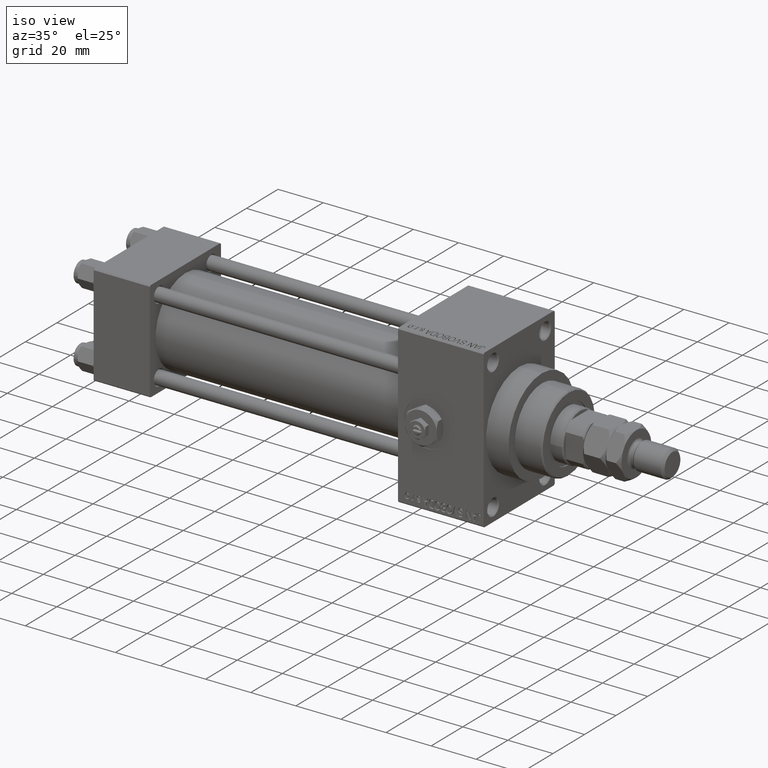
[diagram: clean part render]
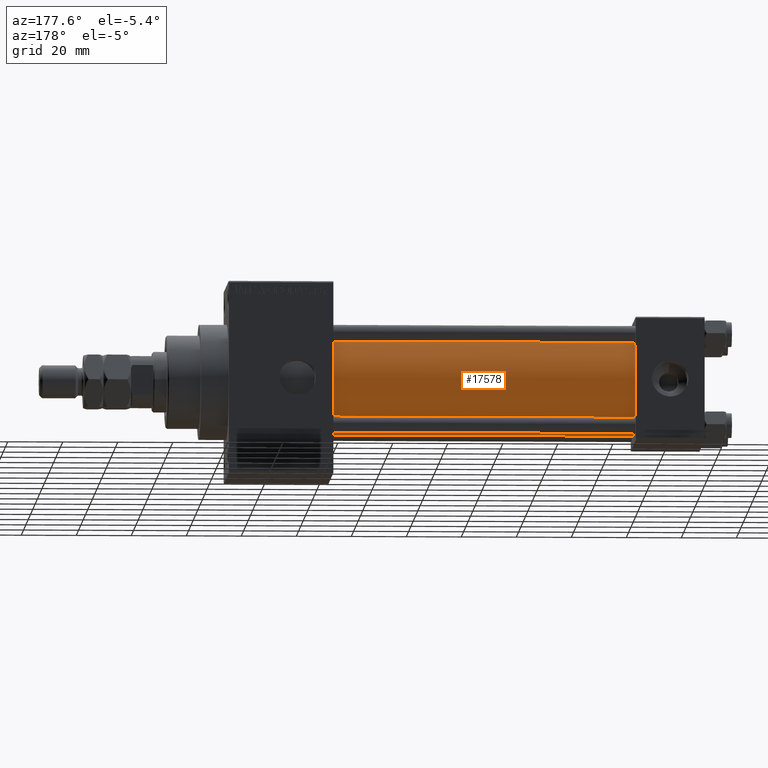
[diagram: tour spotlight — one face highlighted and labeled with its STEP entity id]
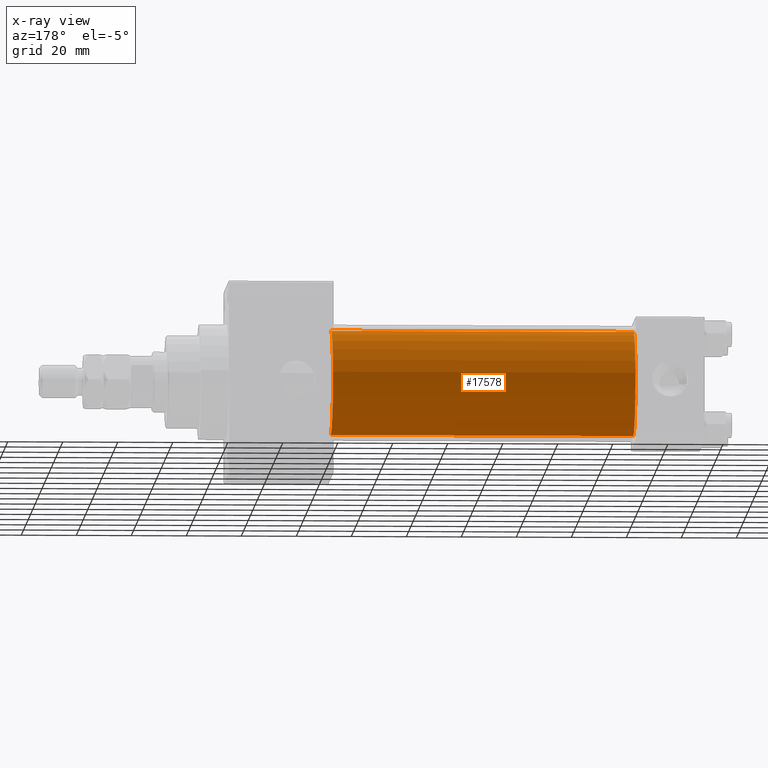
[diagram: x-ray of the same camera — body ghosted, this tour face saturated]
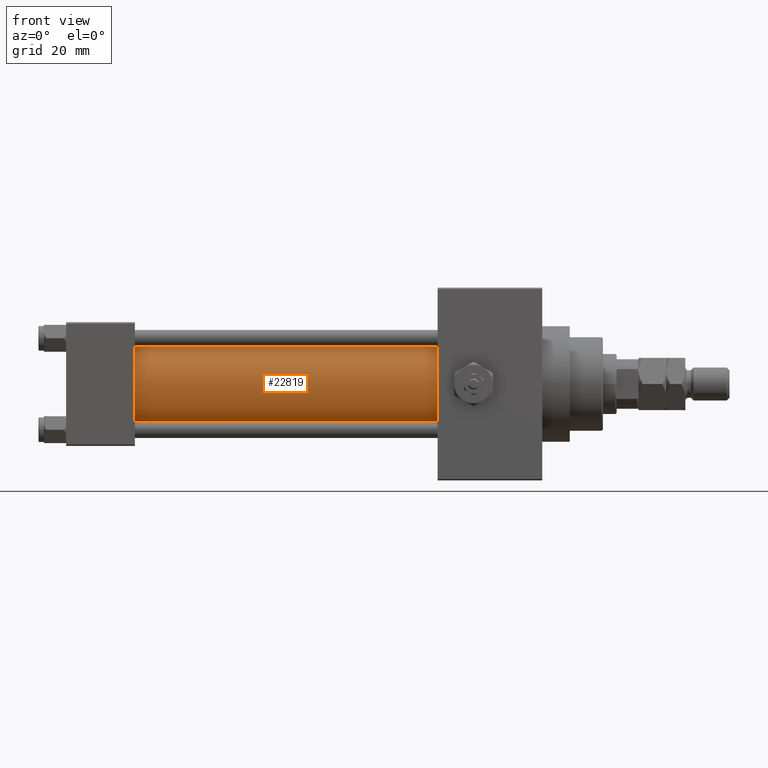
[diagram: tour spotlight — one face highlighted and labeled with its STEP entity id]
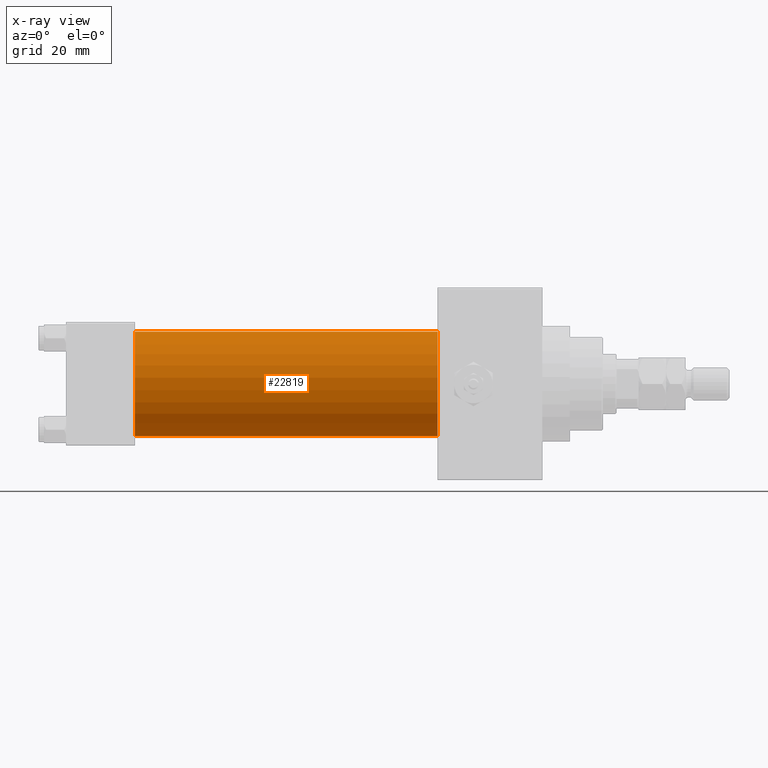
[diagram: x-ray of the same camera — body ghosted, this tour face saturated]
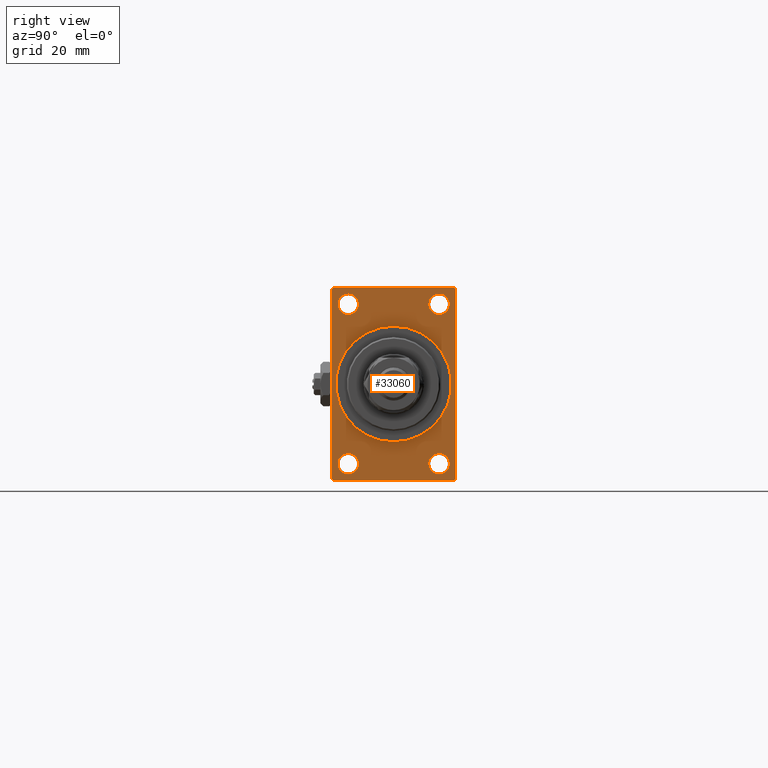
[diagram: tour spotlight — one face highlighted and labeled with its STEP entity id]
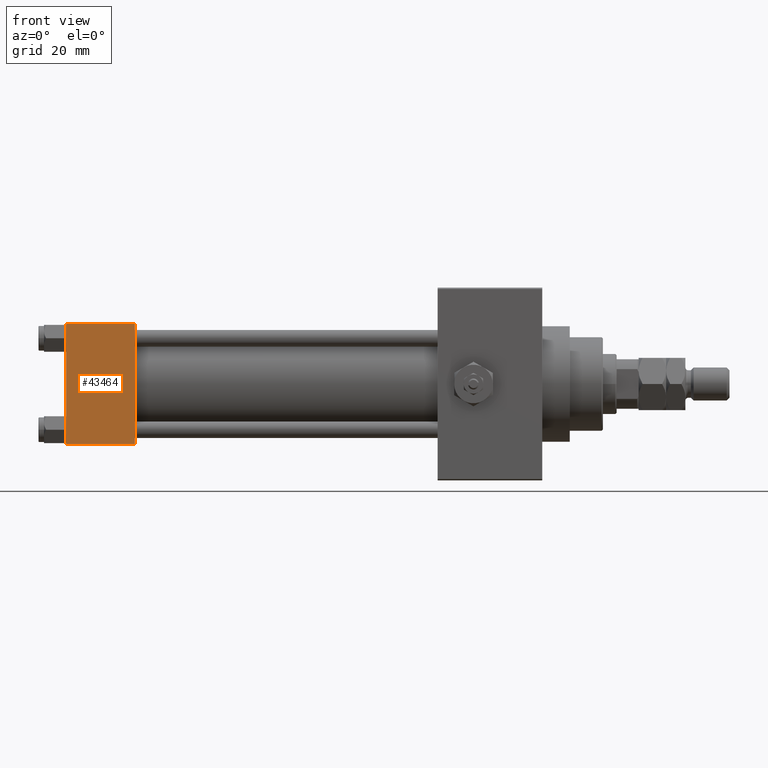
[diagram: tour spotlight — one face highlighted and labeled with its STEP entity id]
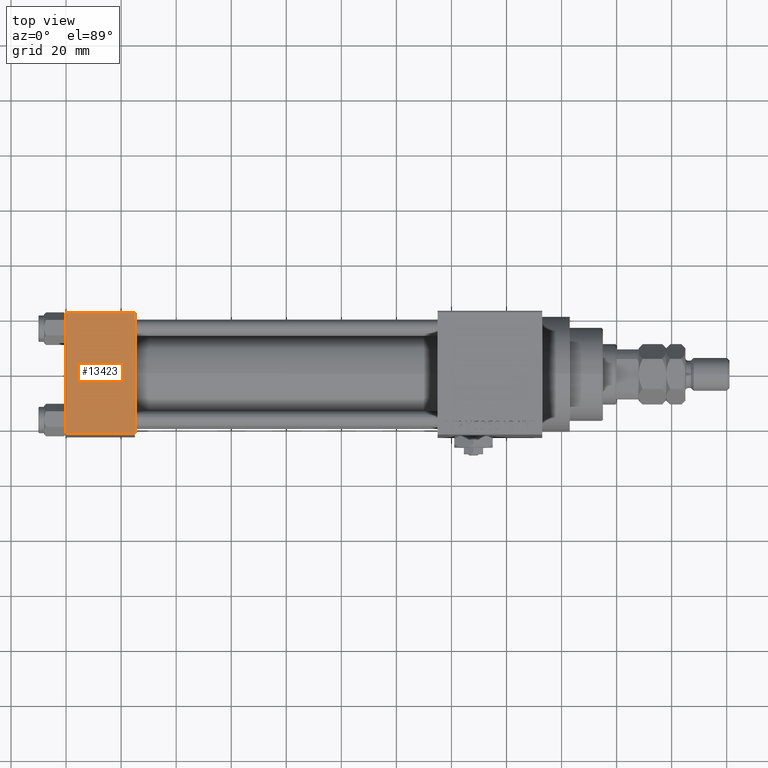
[diagram: tour spotlight — one face highlighted and labeled with its STEP entity id]
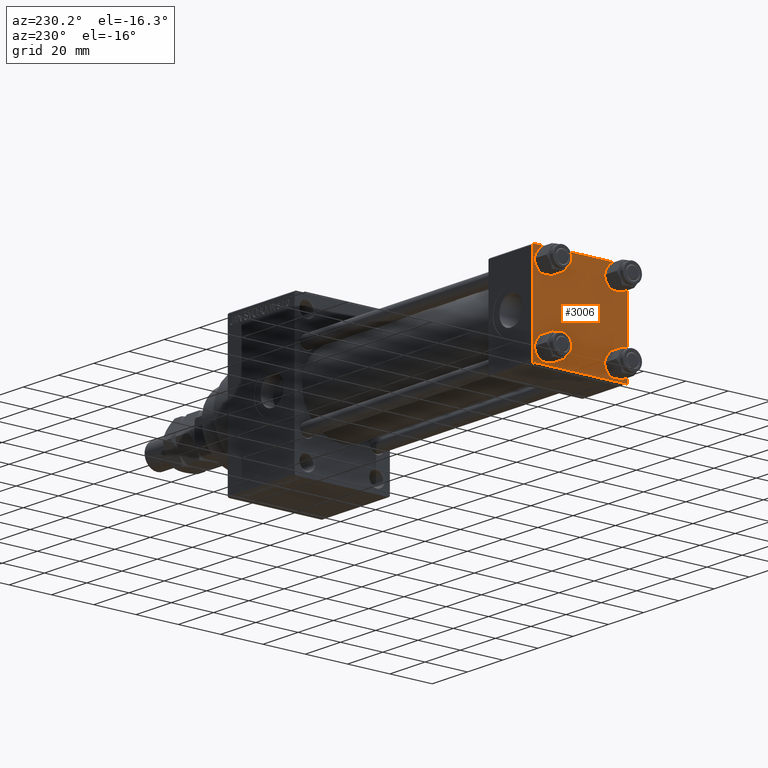
[diagram: tour spotlight — one face highlighted and labeled with its STEP entity id]
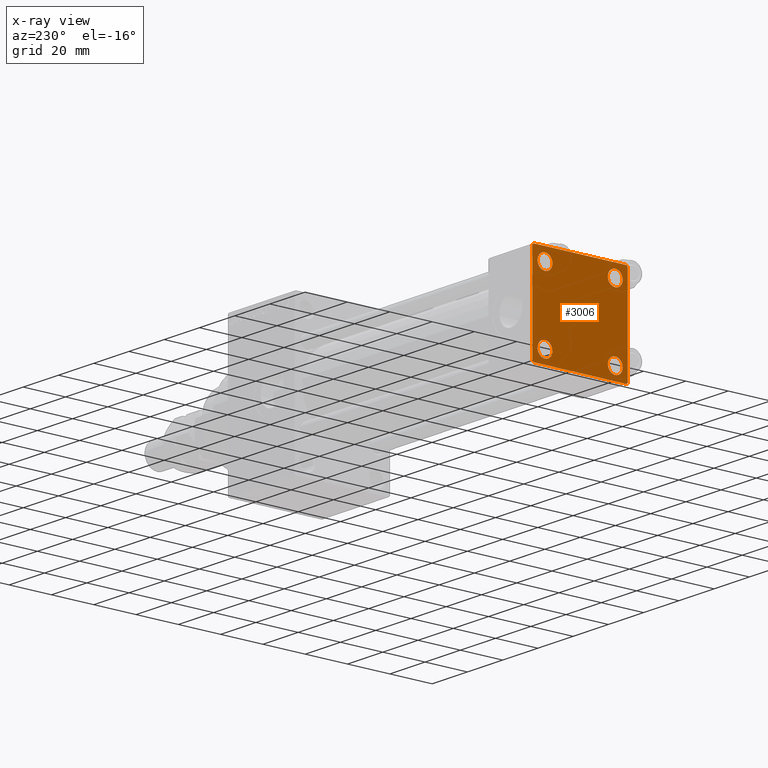
[diagram: x-ray of the same camera — body ghosted, this tour face saturated]
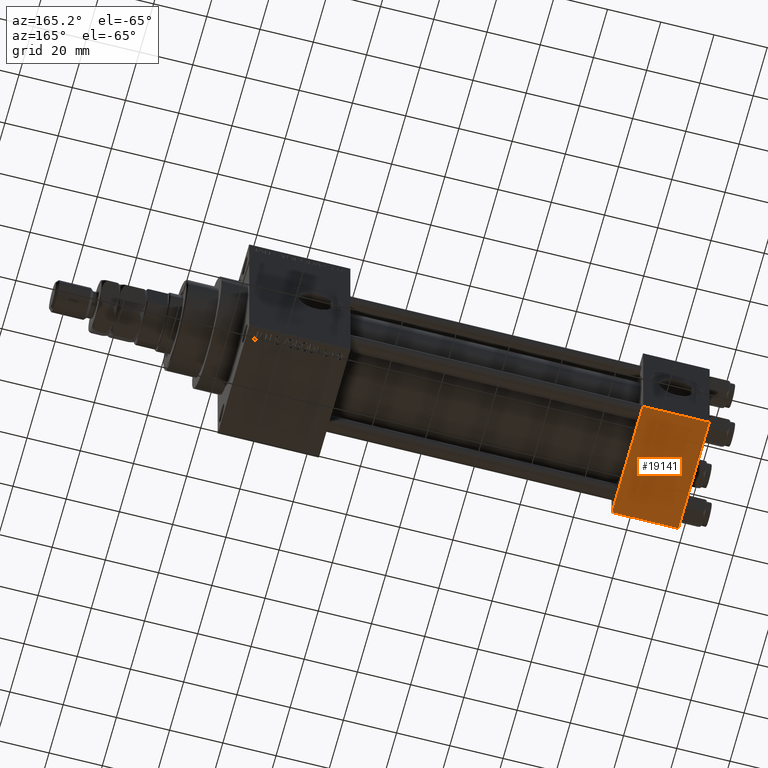
[diagram: tour spotlight — one face highlighted and labeled with its STEP entity id]
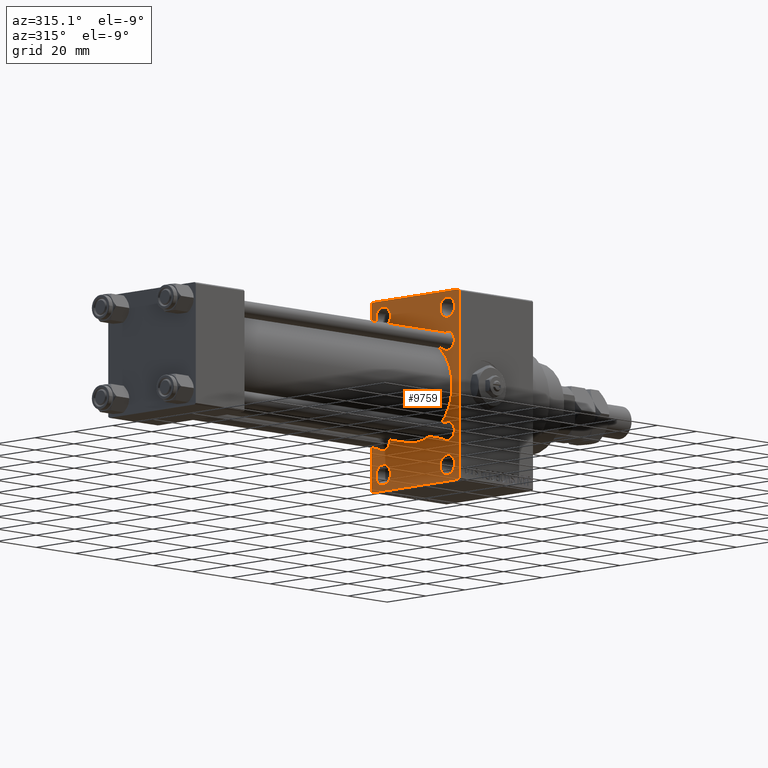
[diagram: tour spotlight — one face highlighted and labeled with its STEP entity id]
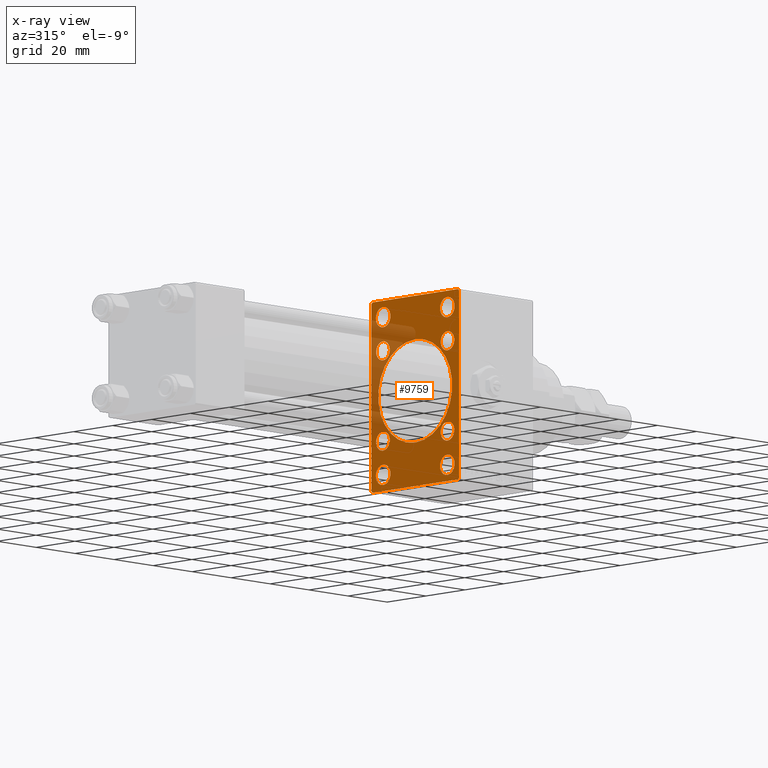
[diagram: x-ray of the same camera — body ghosted, this tour face saturated]
A machine part: a face-by-face anatomy tour. The part has 1199 B-rep faces; the first image is the clean iso view, then the 8 largest visible faces are spotlighted one at a time (largest first), each with its STEP entity span.

Face 1 — auxiliary view, entity #17578. An x-ray twin of the same camera follows (body ghosted, this face saturated) — the face is partly hidden behind the body. In plain terms, the highlighted cylindrical surface (partial cylindrical patch) has radius 19 mm, axis along (-1, -0, -0).
Definition (entity closure, byte-faithful):
#379 = CARTESIAN_POINT ( 'NONE',  ( 135.0000000000000000, -2.602085213965210642E-15, 19.00000000000000000 ) ) ;
#1524 = AXIS2_PLACEMENT_3D ( 'NONE', #46007, #42186, #31465 ) ;
#2090 = DIRECTION ( 'NONE',  ( -1.000000000000000000, -0.000000000000000000, -0.000000000000000000 ) ) ;
#3976 = EDGE_CURVE ( 'NONE', #44026, #16829, #45138, .T. ) ;
#7290 = FACE_OUTER_BOUND ( 'NONE', #45402, .T. ) ;
#9626 = CARTESIAN_POINT ( 'NONE',  ( 135.0000000000000000, -2.602085213965210642E-15, 0.000000000000000000 ) ) ;
#10548 = ORIENTED_EDGE ( 'NONE', *, *, #11444, .T. ) ;
#11444 = EDGE_CURVE ( 'NONE', #44026, #45005, #46376, .T. ) ;
#11841 = CARTESIAN_POINT ( 'NONE',  ( 135.0000000000000000, -2.602085213965210642E-15, 0.000000000000000000 ) ) ;
#15140 = CARTESIAN_POINT ( 'NONE',  ( 24.99999999999999289, -2.752562955852396712E-16, -19.00000000000000000 ) ) ;
#16829 = VERTEX_POINT ( 'NONE', #379 ) ;
#17578 = ADVANCED_FACE ( 'NONE', ( #7290 ), #31196, .T. ) ;
#19489 = DIRECTION ( 'NONE',  ( -1.000000000000000000, -0.000000000000000000, -0.000000000000000000 ) ) ;
#20081 = DIRECTION ( 'NONE',  ( 1.000000000000000000, 0.000000000000000000, 0.000000000000000000 ) ) ;
#21365 = AXIS2_PLACEMENT_3D ( 'NONE', #11841, #19489, #34034 ) ;
#23179 = AXIS2_PLACEMENT_3D ( 'NONE', #9626, #20081, #35629 ) ;
#24754 = CARTESIAN_POINT ( 'NONE',  ( 135.0000000000000000, -2.602085213965210642E-15, 19.00000000000000000 ) ) ;
#26714 = CIRCLE ( 'NONE', #1524, 19.00000000000000000 ) ;
#27920 = VERTEX_POINT ( 'NONE', #43492 ) ;
#31196 = CYLINDRICAL_SURFACE ( 'NONE', #21365, 19.00000000000000000 ) ;
#31324 = CARTESIAN_POINT ( 'NONE',  ( 135.0000000000000000, -2.752562955852396712E-16, -19.00000000000000000 ) ) ;
#31465 = DIRECTION ( 'NONE',  ( 0.000000000000000000, 0.000000000000000000, 1.000000000000000000 ) ) ;
#32232 = ORIENTED_EDGE ( 'NONE', *, *, #48414, .T. ) ;
#34034 = DIRECTION ( 'NONE',  ( 0.000000000000000000, 0.000000000000000000, 1.000000000000000000 ) ) ;
#35629 = DIRECTION ( 'NONE',  ( 0.000000000000000000, 0.000000000000000000, -1.000000000000000000 ) ) ;
#36689 = EDGE_CURVE ( 'NONE', #16829, #27920, #45378, .T. ) ;
#38982 = DIRECTION ( 'NONE',  ( -1.000000000000000000, -0.000000000000000000, -0.000000000000000000 ) ) ;
#42186 = DIRECTION ( 'NONE',  ( 1.000000000000000000, -0.000000000000000000, 0.000000000000000000 ) ) ;
#42336 = VECTOR ( 'NONE', #38982, 1000.000000000000000 ) ;
#43466 = CARTESIAN_POINT ( 'NONE',  ( 135.0000000000000000, -2.752562955852396712E-16, -19.00000000000000000 ) ) ;
#43492 = CARTESIAN_POINT ( 'NONE',  ( 24.99999999999999289, -2.602085213965210642E-15, 19.00000000000000000 ) ) ;
#44026 = VERTEX_POINT ( 'NONE', #43466 ) ;
#45005 = VERTEX_POINT ( 'NONE', #15140 ) ;
#45138 = CIRCLE ( 'NONE', #23179, 19.00000000000000000 ) ;
#45378 = LINE ( 'NONE', #24754, #46751 ) ;
#45402 = EDGE_LOOP ( 'NONE', ( #47550, #10548, #32232, #48990 ) ) ;
#46007 = CARTESIAN_POINT ( 'NONE',  ( 24.99999999999999289, -2.602085213965210642E-15, 0.000000000000000000 ) ) ;
#46376 = LINE ( 'NONE', #31324, #42336 ) ;
#46751 = VECTOR ( 'NONE', #2090, 1000.000000000000000 ) ;
#47550 = ORIENTED_EDGE ( 'NONE', *, *, #3976, .F. ) ;
#48414 = EDGE_CURVE ( 'NONE', #45005, #27920, #26714, .T. ) ;
#48990 = ORIENTED_EDGE ( 'NONE', *, *, #36689, .F. ) ;

Face 2 — front view, entity #22819. An x-ray twin of the same camera follows (body ghosted, this face saturated) — the face is partly hidden behind the body. In plain terms, the highlighted cylindrical surface (partial cylindrical patch) has radius 19 mm, axis along (-1, -0, -0).
Definition (entity closure, byte-faithful):
#379 = CARTESIAN_POINT ( 'NONE',  ( 135.0000000000000000, -2.602085213965210642E-15, 19.00000000000000000 ) ) ;
#1186 = FACE_OUTER_BOUND ( 'NONE', #26828, .T. ) ;
#2090 = DIRECTION ( 'NONE',  ( -1.000000000000000000, -0.000000000000000000, -0.000000000000000000 ) ) ;
#6463 = ORIENTED_EDGE ( 'NONE', *, *, #47788, .F. ) ;
#10292 = CARTESIAN_POINT ( 'NONE',  ( 135.0000000000000000, -2.602085213965210642E-15, 0.000000000000000000 ) ) ;
#11444 = EDGE_CURVE ( 'NONE', #44026, #45005, #46376, .T. ) ;
#12268 = ORIENTED_EDGE ( 'NONE', *, *, #11444, .F. ) ;
#12624 = EDGE_CURVE ( 'NONE', #27920, #45005, #34236, .T. ) ;
#13370 = DIRECTION ( 'NONE',  ( 0.000000000000000000, 0.000000000000000000, 1.000000000000000000 ) ) ;
#14979 = DIRECTION ( 'NONE',  ( 1.000000000000000000, -0.000000000000000000, 0.000000000000000000 ) ) ;
#15140 = CARTESIAN_POINT ( 'NONE',  ( 24.99999999999999289, -2.752562955852396712E-16, -19.00000000000000000 ) ) ;
#16703 = CARTESIAN_POINT ( 'NONE',  ( 135.0000000000000000, -2.602085213965210642E-15, 0.000000000000000000 ) ) ;
#16829 = VERTEX_POINT ( 'NONE', #379 ) ;
#17412 = DIRECTION ( 'NONE',  ( 1.000000000000000000, 0.000000000000000000, 0.000000000000000000 ) ) ;
#21266 = DIRECTION ( 'NONE',  ( -1.000000000000000000, -0.000000000000000000, -0.000000000000000000 ) ) ;
#22240 = AXIS2_PLACEMENT_3D ( 'NONE', #16703, #21266, #13370 ) ;
#22384 = DIRECTION ( 'NONE',  ( 0.000000000000000000, 0.000000000000000000, 1.000000000000000000 ) ) ;
#22819 = ADVANCED_FACE ( 'NONE', ( #1186 ), #24599, .T. ) ;
#24599 = CYLINDRICAL_SURFACE ( 'NONE', #22240, 19.00000000000000000 ) ;
#24754 = CARTESIAN_POINT ( 'NONE',  ( 135.0000000000000000, -2.602085213965210642E-15, 19.00000000000000000 ) ) ;
#26828 = EDGE_LOOP ( 'NONE', ( #12268, #6463, #42812, #46022 ) ) ;
#27920 = VERTEX_POINT ( 'NONE', #43492 ) ;
#29343 = AXIS2_PLACEMENT_3D ( 'NONE', #37419, #14979, #22384 ) ;
#31324 = CARTESIAN_POINT ( 'NONE',  ( 135.0000000000000000, -2.752562955852396712E-16, -19.00000000000000000 ) ) ;
#34026 = AXIS2_PLACEMENT_3D ( 'NONE', #10292, #17412, #48254 ) ;
#34236 = CIRCLE ( 'NONE', #29343, 19.00000000000000000 ) ;
#36689 = EDGE_CURVE ( 'NONE', #16829, #27920, #45378, .T. ) ;
#37419 = CARTESIAN_POINT ( 'NONE',  ( 24.99999999999999289, -2.602085213965210642E-15, 0.000000000000000000 ) ) ;
#38982 = DIRECTION ( 'NONE',  ( -1.000000000000000000, -0.000000000000000000, -0.000000000000000000 ) ) ;
#42132 = CIRCLE ( 'NONE', #34026, 19.00000000000000000 ) ;
#42336 = VECTOR ( 'NONE', #38982, 1000.000000000000000 ) ;
#42812 = ORIENTED_EDGE ( 'NONE', *, *, #36689, .T. ) ;
#43466 = CARTESIAN_POINT ( 'NONE',  ( 135.0000000000000000, -2.752562955852396712E-16, -19.00000000000000000 ) ) ;
#43492 = CARTESIAN_POINT ( 'NONE',  ( 24.99999999999999289, -2.602085213965210642E-15, 19.00000000000000000 ) ) ;
#44026 = VERTEX_POINT ( 'NONE', #43466 ) ;
#45005 = VERTEX_POINT ( 'NONE', #15140 ) ;
#45378 = LINE ( 'NONE', #24754, #46751 ) ;
#46022 = ORIENTED_EDGE ( 'NONE', *, *, #12624, .T. ) ;
#46376 = LINE ( 'NONE', #31324, #42336 ) ;
#46751 = VECTOR ( 'NONE', #2090, 1000.000000000000000 ) ;
#47788 = EDGE_CURVE ( 'NONE', #16829, #44026, #42132, .T. ) ;
#48254 = DIRECTION ( 'NONE',  ( 0.000000000000000000, 0.000000000000000000, -1.000000000000000000 ) ) ;

Face 3 — right view, entity #33060. In plain terms, the highlighted planar face has unit normal (-1, 0, 0).
Definition (entity closure, byte-faithful):
#271 = FACE_BOUND ( 'NONE', #29268, .T. ) ;
#739 = ORIENTED_EDGE ( 'NONE', *, *, #35775, .T. ) ;
#790 = CARTESIAN_POINT ( 'NONE',  ( 173.0000000000000284, 21.99999999999999645, 35.00000000000000000 ) ) ;
#1335 = ORIENTED_EDGE ( 'NONE', *, *, #1737, .F. ) ;
#1356 = CARTESIAN_POINT ( 'NONE',  ( 173.0000000000000284, -16.50000000000000000, -25.24999999999982592 ) ) ;
#1536 = VERTEX_POINT ( 'NONE', #50289 ) ;
#1737 = EDGE_CURVE ( 'NONE', #27119, #10740, #47967, .T. ) ;
#1858 = AXIS2_PLACEMENT_3D ( 'NONE', #42327, #19140, #44262 ) ;
#2321 = AXIS2_PLACEMENT_3D ( 'NONE', #4973, #36040, #2916 ) ;
#2538 = VERTEX_POINT ( 'NONE', #29904 ) ;
#2773 = VECTOR ( 'NONE', #50382, 1000.000000000000000 ) ;
#2916 = DIRECTION ( 'NONE',  ( 0.000000000000000000, 0.000000000000000000, 1.000000000000000000 ) ) ;
#3470 = CARTESIAN_POINT ( 'NONE',  ( 173.0000000000000284, 22.49999999999999645, 34.50000000000000000 ) ) ;
#3595 = DIRECTION ( 'NONE',  ( -1.000000000000000000, 0.000000000000000000, -0.000000000000000000 ) ) ;
#4354 = ORIENTED_EDGE ( 'NONE', *, *, #48543, .T. ) ;
#4973 = CARTESIAN_POINT ( 'NONE',  ( 173.0000000000000284, -16.50000000000000000, 29.00000000000000711 ) ) ;
#5413 = EDGE_LOOP ( 'NONE', ( #46477, #23840, #18397, #48109, #1335, #46385, #15294, #26687 ) ) ;
#5422 = CARTESIAN_POINT ( 'NONE',  ( 173.0000000000000284, 22.49999999999999645, 35.00000000000000000 ) ) ;
#5475 = CARTESIAN_POINT ( 'NONE',  ( 173.0000000000000284, -22.50000000000000355, -34.50000000000000000 ) ) ;
#6055 = EDGE_CURVE ( 'NONE', #29465, #28182, #42611, .T. ) ;
#6265 = CARTESIAN_POINT ( 'NONE',  ( 173.0000000000000284, -22.00000000000000355, -35.00000000000000000 ) ) ;
#6444 = ORIENTED_EDGE ( 'NONE', *, *, #32885, .T. ) ;
#6512 = CARTESIAN_POINT ( 'NONE',  ( 173.0000000000000284, 16.50000000000000000, -25.24999999999982592 ) ) ;
#6702 = VECTOR ( 'NONE', #34401, 1000.000000000000000 ) ;
#6771 = AXIS2_PLACEMENT_3D ( 'NONE', #31495, #15692, #20023 ) ;
#6791 = EDGE_CURVE ( 'NONE', #22484, #2538, #21774, .T. ) ;
#7671 = FACE_OUTER_BOUND ( 'NONE', #5413, .T. ) ;
#8216 = VERTEX_POINT ( 'NONE', #36477 ) ;
#8231 = VERTEX_POINT ( 'NONE', #36227 ) ;
#8439 = AXIS2_PLACEMENT_3D ( 'NONE', #33300, #48589, #29217 ) ;
#9665 = VERTEX_POINT ( 'NONE', #1356 ) ;
#10740 = VERTEX_POINT ( 'NONE', #27745 ) ;
#10781 = EDGE_LOOP ( 'NONE', ( #46187, #14572 ) ) ;
#10795 = CIRCLE ( 'NONE', #1858, 21.00000000000000000 ) ;
#10980 = CARTESIAN_POINT ( 'NONE',  ( 173.0000000000000284, 16.50000000000000000, -28.99999999999999289 ) ) ;
#11923 = LINE ( 'NONE', #47079, #21532 ) ;
#12085 = CIRCLE ( 'NONE', #2321, 3.750000000000166533 ) ;
#13428 = EDGE_CURVE ( 'NONE', #28182, #18750, #44465, .T. ) ;
#13764 = CARTESIAN_POINT ( 'NONE',  ( 173.0000000000000284, 16.50000000000000000, 32.75000000000017764 ) ) ;
#14192 = AXIS2_PLACEMENT_3D ( 'NONE', #29321, #21928, #29065 ) ;
#14295 = VECTOR ( 'NONE', #38293, 1000.000000000000000 ) ;
#14536 = DIRECTION ( 'NONE',  ( 0.000000000000000000, 0.000000000000000000, 1.000000000000000000 ) ) ;
#14572 = ORIENTED_EDGE ( 'NONE', *, *, #18755, .T. ) ;
#15294 = ORIENTED_EDGE ( 'NONE', *, *, #34800, .T. ) ;
#15692 = DIRECTION ( 'NONE',  ( -1.000000000000000000, -0.000000000000000000, -0.000000000000000000 ) ) ;
#15702 = LINE ( 'NONE', #34847, #2773 ) ;
#15783 = FACE_BOUND ( 'NONE', #10781, .T. ) ;
#16387 = CARTESIAN_POINT ( 'NONE',  ( 173.0000000000000284, -16.50000000000000000, 25.24999999999984368 ) ) ;
#16765 = DIRECTION ( 'NONE',  ( 0.000000000000000000, 0.000000000000000000, 1.000000000000000000 ) ) ;
#16909 = VERTEX_POINT ( 'NONE', #13764 ) ;
#17136 = EDGE_CURVE ( 'NONE', #8231, #29465, #46370, .T. ) ;
#17507 = AXIS2_PLACEMENT_3D ( 'NONE', #10980, #33418, #14536 ) ;
#18397 = ORIENTED_EDGE ( 'NONE', *, *, #23732, .F. ) ;
#18750 = VERTEX_POINT ( 'NONE', #32154 ) ;
#18755 = EDGE_CURVE ( 'NONE', #16909, #28719, #48283, .T. ) ;
#19140 = DIRECTION ( 'NONE',  ( 1.000000000000000000, 0.000000000000000000, 0.000000000000000000 ) ) ;
#19322 = DIRECTION ( 'NONE',  ( -0.000000000000000000, 0.7071067811865279218, 0.7071067811865671127 ) ) ;
#20023 = DIRECTION ( 'NONE',  ( 0.000000000000000000, 0.000000000000000000, 1.000000000000000000 ) ) ;
#20092 = AXIS2_PLACEMENT_3D ( 'NONE', #24160, #43775, #16765 ) ;
#20680 = DIRECTION ( 'NONE',  ( -1.000000000000000000, -0.000000000000000000, -0.000000000000000000 ) ) ;
#21187 = VECTOR ( 'NONE', #48550, 1000.000000000000114 ) ;
#21468 = EDGE_CURVE ( 'NONE', #2538, #22484, #10795, .T. ) ;
#21532 = VECTOR ( 'NONE', #19322, 1000.000000000000000 ) ;
#21774 = CIRCLE ( 'NONE', #45383, 21.00000000000000000 ) ;
#21928 = DIRECTION ( 'NONE',  ( -1.000000000000000000, -0.000000000000000000, -0.000000000000000000 ) ) ;
#22202 = LINE ( 'NONE', #790, #30643 ) ;
#22440 = FACE_BOUND ( 'NONE', #46162, .T. ) ;
#22484 = VERTEX_POINT ( 'NONE', #37134 ) ;
#22659 = EDGE_CURVE ( 'NONE', #28719, #16909, #28711, .T. ) ;
#23146 = VECTOR ( 'NONE', #32426, 1000.000000000000000 ) ;
#23419 = AXIS2_PLACEMENT_3D ( 'NONE', #34169, #3595, #27262 ) ;
#23732 = EDGE_CURVE ( 'NONE', #35368, #18750, #15702, .T. ) ;
#23840 = ORIENTED_EDGE ( 'NONE', *, *, #13428, .T. ) ;
#24160 = CARTESIAN_POINT ( 'NONE',  ( 173.0000000000000284, -16.50000000000000000, 29.00000000000000711 ) ) ;
#24251 = CARTESIAN_POINT ( 'NONE',  ( 173.0000000000000284, -16.50000000000000000, -28.99999999999999289 ) ) ;
#24355 = ORIENTED_EDGE ( 'NONE', *, *, #6791, .F. ) ;
#25853 = AXIS2_PLACEMENT_3D ( 'NONE', #24251, #35966, #27811 ) ;
#26589 = ORIENTED_EDGE ( 'NONE', *, *, #34388, .T. ) ;
#26687 = ORIENTED_EDGE ( 'NONE', *, *, #17136, .T. ) ;
#26771 = PLANE ( 'NONE',  #23419 ) ;
#27119 = VERTEX_POINT ( 'NONE', #3470 ) ;
#27262 = DIRECTION ( 'NONE',  ( -0.000000000000000000, 0.000000000000000000, 1.000000000000000000 ) ) ;
#27348 = EDGE_CURVE ( 'NONE', #45059, #8216, #50073, .T. ) ;
#27414 = VERTEX_POINT ( 'NONE', #30329 ) ;
#27506 = FACE_BOUND ( 'NONE', #36922, .T. ) ;
#27745 = CARTESIAN_POINT ( 'NONE',  ( 173.0000000000000284, 22.49999999999999645, -34.50000000000000000 ) ) ;
#27811 = DIRECTION ( 'NONE',  ( 0.000000000000000000, 0.000000000000000000, 1.000000000000000000 ) ) ;
#27885 = DIRECTION ( 'NONE',  ( 1.000000000000000000, 0.000000000000000000, 0.000000000000000000 ) ) ;
#28182 = VERTEX_POINT ( 'NONE', #5475 ) ;
#28711 = CIRCLE ( 'NONE', #6771, 3.750000000000169642 ) ;
#28719 = VERTEX_POINT ( 'NONE', #44000 ) ;
#29065 = DIRECTION ( 'NONE',  ( 0.000000000000000000, 0.000000000000000000, 1.000000000000000000 ) ) ;
#29217 = DIRECTION ( 'NONE',  ( 0.000000000000000000, 0.000000000000000000, 1.000000000000000000 ) ) ;
#29268 = EDGE_LOOP ( 'NONE', ( #24355, #30906 ) ) ;
#29321 = CARTESIAN_POINT ( 'NONE',  ( 173.0000000000000284, 16.50000000000000000, -28.99999999999999289 ) ) ;
#29465 = VERTEX_POINT ( 'NONE', #34696 ) ;
#29904 = CARTESIAN_POINT ( 'NONE',  ( 173.0000000000000284, 2.571758278209441661E-15, -21.00000000000000000 ) ) ;
#30329 = CARTESIAN_POINT ( 'NONE',  ( 173.0000000000000284, 21.99999999999999645, 35.00000000000000000 ) ) ;
#30374 = EDGE_CURVE ( 'NONE', #27119, #27414, #22202, .T. ) ;
#30643 = VECTOR ( 'NONE', #43068, 1000.000000000000114 ) ;
#30906 = ORIENTED_EDGE ( 'NONE', *, *, #21468, .F. ) ;
#31463 = CARTESIAN_POINT ( 'NONE',  ( 173.0000000000000284, 0.000000000000000000, 0.000000000000000000 ) ) ;
#31495 = CARTESIAN_POINT ( 'NONE',  ( 173.0000000000000284, 16.50000000000000000, 29.00000000000000355 ) ) ;
#31891 = VERTEX_POINT ( 'NONE', #16387 ) ;
#32154 = CARTESIAN_POINT ( 'NONE',  ( 173.0000000000000284, -21.99999999999998934, -35.00000000000000000 ) ) ;
#32426 = DIRECTION ( 'NONE',  ( 0.000000000000000000, 0.000000000000000000, -1.000000000000000000 ) ) ;
#32727 = LINE ( 'NONE', #48523, #47475 ) ;
#32885 = EDGE_CURVE ( 'NONE', #1536, #9665, #35631, .T. ) ;
#33060 = ADVANCED_FACE ( 'NONE', ( #27506, #38988, #22440, #15783, #271, #7671 ), #26771, .F. ) ;
#33300 = CARTESIAN_POINT ( 'NONE',  ( 173.0000000000000284, -16.50000000000000000, -28.99999999999999289 ) ) ;
#33418 = DIRECTION ( 'NONE',  ( -1.000000000000000000, -0.000000000000000000, -0.000000000000000000 ) ) ;
#34169 = CARTESIAN_POINT ( 'NONE',  ( 173.0000000000000284, 0.000000000000000000, 0.000000000000000000 ) ) ;
#34314 = ORIENTED_EDGE ( 'NONE', *, *, #27348, .T. ) ;
#34388 = EDGE_CURVE ( 'NONE', #9665, #1536, #42599, .T. ) ;
#34401 = DIRECTION ( 'NONE',  ( -0.000000000000000000, -0.7071067811865279218, -0.7071067811865671127 ) ) ;
#34696 = CARTESIAN_POINT ( 'NONE',  ( 173.0000000000000284, -22.50000000000000355, 34.50000000000000000 ) ) ;
#34800 = EDGE_CURVE ( 'NONE', #27414, #8231, #32727, .T. ) ;
#34847 = CARTESIAN_POINT ( 'NONE',  ( 173.0000000000000284, 22.49999999999999645, -35.00000000000000000 ) ) ;
#35368 = VERTEX_POINT ( 'NONE', #47844 ) ;
#35552 = CIRCLE ( 'NONE', #20092, 3.750000000000166533 ) ;
#35631 = CIRCLE ( 'NONE', #25853, 3.750000000000166533 ) ;
#35775 = EDGE_CURVE ( 'NONE', #8216, #45059, #47513, .T. ) ;
#35966 = DIRECTION ( 'NONE',  ( -1.000000000000000000, -0.000000000000000000, -0.000000000000000000 ) ) ;
#36040 = DIRECTION ( 'NONE',  ( -1.000000000000000000, -0.000000000000000000, -0.000000000000000000 ) ) ;
#36227 = CARTESIAN_POINT ( 'NONE',  ( 173.0000000000000284, -22.00000000000001776, 35.00000000000000000 ) ) ;
#36477 = CARTESIAN_POINT ( 'NONE',  ( 173.0000000000000284, 16.50000000000000000, -32.75000000000017053 ) ) ;
#36922 = EDGE_LOOP ( 'NONE', ( #4354, #39556 ) ) ;
#37134 = CARTESIAN_POINT ( 'NONE',  ( 173.0000000000000284, 0.000000000000000000, 21.00000000000000000 ) ) ;
#37302 = EDGE_CURVE ( 'NONE', #35368, #10740, #11923, .T. ) ;
#38293 = DIRECTION ( 'NONE',  ( 0.000000000000000000, 0.000000000000000000, -1.000000000000000000 ) ) ;
#38988 = FACE_BOUND ( 'NONE', #40497, .T. ) ;
#39556 = ORIENTED_EDGE ( 'NONE', *, *, #41888, .T. ) ;
#40108 = DIRECTION ( 'NONE',  ( 0.000000000000000000, 0.000000000000000000, -1.000000000000000000 ) ) ;
#40497 = EDGE_LOOP ( 'NONE', ( #6444, #26589 ) ) ;
#40968 = CARTESIAN_POINT ( 'NONE',  ( 173.0000000000000284, -16.50000000000000000, 32.75000000000017764 ) ) ;
#41888 = EDGE_CURVE ( 'NONE', #46584, #31891, #35552, .T. ) ;
#42327 = CARTESIAN_POINT ( 'NONE',  ( 173.0000000000000284, 0.000000000000000000, 0.000000000000000000 ) ) ;
#42599 = CIRCLE ( 'NONE', #8439, 3.750000000000166533 ) ;
#42611 = LINE ( 'NONE', #45930, #14295 ) ;
#43068 = DIRECTION ( 'NONE',  ( 0.000000000000000000, -0.7071067811865474617, 0.7071067811865474617 ) ) ;
#43775 = DIRECTION ( 'NONE',  ( -1.000000000000000000, -0.000000000000000000, -0.000000000000000000 ) ) ;
#44000 = CARTESIAN_POINT ( 'NONE',  ( 173.0000000000000284, 16.50000000000000000, 25.24999999999983658 ) ) ;
#44262 = DIRECTION ( 'NONE',  ( 0.000000000000000000, 0.000000000000000000, -1.000000000000000000 ) ) ;
#44438 = DIRECTION ( 'NONE',  ( 0.000000000000000000, -1.000000000000000000, 0.000000000000000000 ) ) ;
#44465 = LINE ( 'NONE', #6265, #21187 ) ;
#45059 = VERTEX_POINT ( 'NONE', #6512 ) ;
#45383 = AXIS2_PLACEMENT_3D ( 'NONE', #31463, #27885, #40108 ) ;
#45930 = CARTESIAN_POINT ( 'NONE',  ( 173.0000000000000284, -22.50000000000000355, 35.00000000000000000 ) ) ;
#46162 = EDGE_LOOP ( 'NONE', ( #739, #34314 ) ) ;
#46187 = ORIENTED_EDGE ( 'NONE', *, *, #22659, .T. ) ;
#46370 = LINE ( 'NONE', #46611, #6702 ) ;
#46385 = ORIENTED_EDGE ( 'NONE', *, *, #30374, .T. ) ;
#46477 = ORIENTED_EDGE ( 'NONE', *, *, #6055, .T. ) ;
#46584 = VERTEX_POINT ( 'NONE', #40968 ) ;
#46611 = CARTESIAN_POINT ( 'NONE',  ( 173.0000000000000284, -22.50000000000000355, 34.50000000000000000 ) ) ;
#47079 = CARTESIAN_POINT ( 'NONE',  ( 173.0000000000000284, 22.49999999999999645, -34.50000000000000000 ) ) ;
#47441 = CARTESIAN_POINT ( 'NONE',  ( 173.0000000000000284, 16.50000000000000000, 29.00000000000000355 ) ) ;
#47475 = VECTOR ( 'NONE', #44438, 1000.000000000000000 ) ;
#47513 = CIRCLE ( 'NONE', #14192, 3.750000000000166533 ) ;
#47698 = DIRECTION ( 'NONE',  ( 0.000000000000000000, 0.000000000000000000, 1.000000000000000000 ) ) ;
#47844 = CARTESIAN_POINT ( 'NONE',  ( 173.0000000000000284, 22.00000000000002132, -35.00000000000000000 ) ) ;
#47967 = LINE ( 'NONE', #5422, #23146 ) ;
#48109 = ORIENTED_EDGE ( 'NONE', *, *, #37302, .T. ) ;
#48283 = CIRCLE ( 'NONE', #49893, 3.750000000000169642 ) ;
#48523 = CARTESIAN_POINT ( 'NONE',  ( 173.0000000000000284, 22.49999999999999645, 35.00000000000000000 ) ) ;
#48543 = EDGE_CURVE ( 'NONE', #31891, #46584, #12085, .T. ) ;
#48550 = DIRECTION ( 'NONE',  ( 0.000000000000000000, 0.7071067811865474617, -0.7071067811865474617 ) ) ;
#48589 = DIRECTION ( 'NONE',  ( -1.000000000000000000, -0.000000000000000000, -0.000000000000000000 ) ) ;
#49893 = AXIS2_PLACEMENT_3D ( 'NONE', #47441, #20680, #47698 ) ;
#50073 = CIRCLE ( 'NONE', #17507, 3.750000000000166533 ) ;
#50289 = CARTESIAN_POINT ( 'NONE',  ( 173.0000000000000284, -16.50000000000000000, -32.75000000000017053 ) ) ;
#50382 = DIRECTION ( 'NONE',  ( 0.000000000000000000, -1.000000000000000000, 0.000000000000000000 ) ) ;

Face 4 — front view, entity #43464. In plain terms, the highlighted planar face has unit normal (0, 1, 0).
Definition (entity closure, byte-faithful):
#2345 = EDGE_LOOP ( 'NONE', ( #24164, #42697, #33305, #39937 ) ) ;
#4238 = VERTEX_POINT ( 'NONE', #42453 ) ;
#6984 = LINE ( 'NONE', #31139, #37593 ) ;
#11523 = CARTESIAN_POINT ( 'NONE',  ( 0.000000000000000000, -22.50000000000000000, -21.99999999999997158 ) ) ;
#13341 = LINE ( 'NONE', #28888, #50318 ) ;
#13354 = VERTEX_POINT ( 'NONE', #15117 ) ;
#13693 = VERTEX_POINT ( 'NONE', #46989 ) ;
#14167 = DIRECTION ( 'NONE',  ( 1.000000000000000000, 0.000000000000000000, 0.000000000000000000 ) ) ;
#15117 = CARTESIAN_POINT ( 'NONE',  ( 25.00000000000000000, -22.50000000000000000, -21.99999999999997158 ) ) ;
#15255 = AXIS2_PLACEMENT_3D ( 'NONE', #28611, #36515, #29366 ) ;
#15678 = EDGE_CURVE ( 'NONE', #4238, #13354, #6984, .T. ) ;
#21014 = LINE ( 'NONE', #48537, #31505 ) ;
#24164 = ORIENTED_EDGE ( 'NONE', *, *, #48707, .T. ) ;
#25079 = VERTEX_POINT ( 'NONE', #11523 ) ;
#25551 = PLANE ( 'NONE',  #15255 ) ;
#26311 = VECTOR ( 'NONE', #14167, 1000.000000000000000 ) ;
#26324 = DIRECTION ( 'NONE',  ( 0.000000000000000000, 0.000000000000000000, -1.000000000000000000 ) ) ;
#28611 = CARTESIAN_POINT ( 'NONE',  ( 25.00000000000000000, -22.50000000000000000, 22.50000000000000000 ) ) ;
#28888 = CARTESIAN_POINT ( 'NONE',  ( 0.000000000000000000, -22.50000000000000000, 22.50000000000000000 ) ) ;
#29366 = DIRECTION ( 'NONE',  ( 0.000000000000000000, -0.000000000000000000, 1.000000000000000000 ) ) ;
#31139 = CARTESIAN_POINT ( 'NONE',  ( 25.00000000000000000, -22.50000000000000000, 22.50000000000000000 ) ) ;
#31505 = VECTOR ( 'NONE', #48038, 1000.000000000000000 ) ;
#33305 = ORIENTED_EDGE ( 'NONE', *, *, #15678, .F. ) ;
#33457 = FACE_OUTER_BOUND ( 'NONE', #2345, .T. ) ;
#33808 = CARTESIAN_POINT ( 'NONE',  ( 25.00000000000000000, -22.50000000000000000, -21.99999999999998579 ) ) ;
#34453 = EDGE_CURVE ( 'NONE', #25079, #13354, #45511, .T. ) ;
#36515 = DIRECTION ( 'NONE',  ( -0.000000000000000000, 1.000000000000000000, 0.000000000000000000 ) ) ;
#37593 = VECTOR ( 'NONE', #26324, 1000.000000000000000 ) ;
#39937 = ORIENTED_EDGE ( 'NONE', *, *, #42232, .T. ) ;
#42232 = EDGE_CURVE ( 'NONE', #4238, #13693, #21014, .T. ) ;
#42453 = CARTESIAN_POINT ( 'NONE',  ( 25.00000000000000000, -22.50000000000000000, 22.00000000000000000 ) ) ;
#42697 = ORIENTED_EDGE ( 'NONE', *, *, #34453, .T. ) ;
#43464 = ADVANCED_FACE ( 'NONE', ( #33457 ), #25551, .F. ) ;
#44429 = DIRECTION ( 'NONE',  ( 0.000000000000000000, 0.000000000000000000, -1.000000000000000000 ) ) ;
#45511 = LINE ( 'NONE', #33808, #26311 ) ;
#46989 = CARTESIAN_POINT ( 'NONE',  ( 0.000000000000000000, -22.50000000000000000, 22.00000000000000000 ) ) ;
#48038 = DIRECTION ( 'NONE',  ( -1.000000000000000000, 0.000000000000000000, 0.000000000000000000 ) ) ;
#48537 = CARTESIAN_POINT ( 'NONE',  ( 25.00000000000000000, -22.50000000000000000, 22.00000000000000000 ) ) ;
#48707 = EDGE_CURVE ( 'NONE', #13693, #25079, #13341, .T. ) ;
#50318 = VECTOR ( 'NONE', #44429, 1000.000000000000000 ) ;

Face 5 — top view, entity #13423. In plain terms, the highlighted planar face has unit normal (0, 0, -1).
Definition (entity closure, byte-faithful):
#59 = AXIS2_PLACEMENT_3D ( 'NONE', #41409, #22042, #33518 ) ;
#2797 = ORIENTED_EDGE ( 'NONE', *, *, #48104, .F. ) ;
#3624 = VERTEX_POINT ( 'NONE', #42822 ) ;
#4738 = CARTESIAN_POINT ( 'NONE',  ( 25.00000000000000000, -21.99999999999999289, 22.50000000000000000 ) ) ;
#11232 = ORIENTED_EDGE ( 'NONE', *, *, #38759, .T. ) ;
#12122 = DIRECTION ( 'NONE',  ( 1.000000000000000000, 0.000000000000000000, 0.000000000000000000 ) ) ;
#13154 = CARTESIAN_POINT ( 'NONE',  ( 25.00000000000000000, 22.50000000000000000, 22.50000000000000355 ) ) ;
#13190 = CARTESIAN_POINT ( 'NONE',  ( 0.000000000000000000, 22.50000000000000000, 22.50000000000000355 ) ) ;
#13423 = ADVANCED_FACE ( 'NONE', ( #17204 ), #14131, .F. ) ;
#14131 = PLANE ( 'NONE',  #59 ) ;
#15663 = ORIENTED_EDGE ( 'NONE', *, *, #45347, .T. ) ;
#16229 = DIRECTION ( 'NONE',  ( 0.000000000000000000, -1.000000000000000000, -7.709882115452476934E-17 ) ) ;
#17031 = VECTOR ( 'NONE', #17267, 1000.000000000000000 ) ;
#17204 = FACE_OUTER_BOUND ( 'NONE', #25907, .T. ) ;
#17267 = DIRECTION ( 'NONE',  ( 0.000000000000000000, -1.000000000000000000, -7.709882115452476934E-17 ) ) ;
#17868 = CARTESIAN_POINT ( 'NONE',  ( 25.00000000000000000, -21.99999999999997868, 22.50000000000000000 ) ) ;
#18150 = DIRECTION ( 'NONE',  ( -1.000000000000000000, 0.000000000000000000, 0.000000000000000000 ) ) ;
#18904 = LINE ( 'NONE', #33456, #24163 ) ;
#22042 = DIRECTION ( 'NONE',  ( 0.000000000000000000, 7.709882115452476934E-17, -1.000000000000000000 ) ) ;
#24163 = VECTOR ( 'NONE', #18150, 1000.000000000000000 ) ;
#25907 = EDGE_LOOP ( 'NONE', ( #42736, #11232, #2797, #15663 ) ) ;
#32529 = CARTESIAN_POINT ( 'NONE',  ( 25.00000000000000000, 21.99999999999999289, 22.50000000000000355 ) ) ;
#33022 = CARTESIAN_POINT ( 'NONE',  ( 0.000000000000000000, 21.99999999999999289, 22.50000000000000355 ) ) ;
#33456 = CARTESIAN_POINT ( 'NONE',  ( 0.000000000000000000, 21.99999999999999289, 22.50000000000000355 ) ) ;
#33518 = DIRECTION ( 'NONE',  ( 0.000000000000000000, 1.000000000000000000, 7.709882115452476934E-17 ) ) ;
#35404 = VECTOR ( 'NONE', #12122, 1000.000000000000000 ) ;
#35651 = VECTOR ( 'NONE', #16229, 1000.000000000000000 ) ;
#36369 = VERTEX_POINT ( 'NONE', #32529 ) ;
#36593 = VERTEX_POINT ( 'NONE', #17868 ) ;
#38759 = EDGE_CURVE ( 'NONE', #3624, #36593, #47029, .T. ) ;
#41409 = CARTESIAN_POINT ( 'NONE',  ( 25.00000000000000000, 22.50000000000000000, 22.50000000000000355 ) ) ;
#42736 = ORIENTED_EDGE ( 'NONE', *, *, #50357, .T. ) ;
#42822 = CARTESIAN_POINT ( 'NONE',  ( 0.000000000000000000, -21.99999999999997868, 22.50000000000000000 ) ) ;
#45347 = EDGE_CURVE ( 'NONE', #36369, #46996, #18904, .T. ) ;
#46996 = VERTEX_POINT ( 'NONE', #33022 ) ;
#47029 = LINE ( 'NONE', #4738, #35404 ) ;
#47322 = LINE ( 'NONE', #13154, #35651 ) ;
#48104 = EDGE_CURVE ( 'NONE', #36369, #36593, #47322, .T. ) ;
#48114 = LINE ( 'NONE', #13190, #17031 ) ;
#50357 = EDGE_CURVE ( 'NONE', #46996, #3624, #48114, .T. ) ;

Face 6 — auxiliary view, entity #3006. An x-ray twin of the same camera follows (body ghosted, this face saturated) — the face is partly hidden behind the body. In plain terms, the highlighted planar face has unit normal (-1, 0, 0).
Definition (entity closure, byte-faithful):
#481 = DIRECTION ( 'NONE',  ( 0.000000000000000000, 0.000000000000000000, -1.000000000000000000 ) ) ;
#885 = CIRCLE ( 'NONE', #22844, 3.499999999999996003 ) ;
#1548 = DIRECTION ( 'NONE',  ( -0.000000000000000000, 0.000000000000000000, 1.000000000000000000 ) ) ;
#1931 = ORIENTED_EDGE ( 'NONE', *, *, #9766, .T. ) ;
#1935 = EDGE_CURVE ( 'NONE', #12063, #8827, #46590, .T. ) ;
#2939 = ORIENTED_EDGE ( 'NONE', *, *, #43533, .T. ) ;
#3006 = ADVANCED_FACE ( 'NONE', ( #43564, #8691, #44310, #9174, #24703 ), #40246, .T. ) ;
#3624 = VERTEX_POINT ( 'NONE', #42822 ) ;
#4045 = ORIENTED_EDGE ( 'NONE', *, *, #44967, .T. ) ;
#4057 = DIRECTION ( 'NONE',  ( 0.000000000000000000, 0.000000000000000000, 1.000000000000000000 ) ) ;
#4123 = EDGE_LOOP ( 'NONE', ( #1931, #14161 ) ) ;
#4301 = CARTESIAN_POINT ( 'NONE',  ( 0.000000000000000000, 22.50000000000000000, 22.50000000000000355 ) ) ;
#4573 = EDGE_CURVE ( 'NONE', #13693, #3624, #35506, .T. ) ;
#4583 = VERTEX_POINT ( 'NONE', #48413 ) ;
#4595 = DIRECTION ( 'NONE',  ( 0.000000000000000000, 0.000000000000000000, 1.000000000000000000 ) ) ;
#4938 = EDGE_LOOP ( 'NONE', ( #33576, #35006 ) ) ;
#5034 = ORIENTED_EDGE ( 'NONE', *, *, #12356, .T. ) ;
#5190 = DIRECTION ( 'NONE',  ( 0.000000000000000000, 0.7071067811865474617, -0.7071067811865474617 ) ) ;
#5790 = CARTESIAN_POINT ( 'NONE',  ( 0.000000000000000000, -16.59999999999999076, 13.10000000000001030 ) ) ;
#6173 = CARTESIAN_POINT ( 'NONE',  ( 0.000000000000000000, 22.50000000000000000, -22.49999999999999645 ) ) ;
#6234 = DIRECTION ( 'NONE',  ( 1.000000000000000000, -0.000000000000000000, 0.000000000000000000 ) ) ;
#6387 = VECTOR ( 'NONE', #8984, 1000.000000000000000 ) ;
#6994 = EDGE_CURVE ( 'NONE', #18900, #19822, #37489, .T. ) ;
#7521 = DIRECTION ( 'NONE',  ( 1.000000000000000000, -0.000000000000000000, 0.000000000000000000 ) ) ;
#8192 = DIRECTION ( 'NONE',  ( 1.000000000000000000, -0.000000000000000000, 0.000000000000000000 ) ) ;
#8223 = EDGE_CURVE ( 'NONE', #8827, #18900, #31895, .T. ) ;
#8691 = FACE_BOUND ( 'NONE', #4123, .T. ) ;
#8827 = VERTEX_POINT ( 'NONE', #31036 ) ;
#8984 = DIRECTION ( 'NONE',  ( -0.000000000000000000, -0.7071067811865426878, -0.7071067811865524577 ) ) ;
#9174 = FACE_BOUND ( 'NONE', #11987, .T. ) ;
#9766 = EDGE_CURVE ( 'NONE', #4583, #14737, #12941, .T. ) ;
#10010 = DIRECTION ( 'NONE',  ( 0.000000000000000000, -0.7071067811865426878, 0.7071067811865524577 ) ) ;
#10791 = DIRECTION ( 'NONE',  ( 1.000000000000000000, -0.000000000000000000, 0.000000000000000000 ) ) ;
#11523 = CARTESIAN_POINT ( 'NONE',  ( 0.000000000000000000, -22.50000000000000000, -21.99999999999997158 ) ) ;
#11851 = CARTESIAN_POINT ( 'NONE',  ( 0.000000000000000000, 22.50000000000000000, 21.99999999999999645 ) ) ;
#11905 = DIRECTION ( 'NONE',  ( 0.000000000000000000, 0.000000000000000000, 1.000000000000000000 ) ) ;
#11987 = EDGE_LOOP ( 'NONE', ( #4045, #30289 ) ) ;
#12063 = VERTEX_POINT ( 'NONE', #11851 ) ;
#12356 = EDGE_CURVE ( 'NONE', #47712, #29866, #30915, .T. ) ;
#12822 = ORIENTED_EDGE ( 'NONE', *, *, #4573, .T. ) ;
#12916 = EDGE_CURVE ( 'NONE', #14737, #4583, #885, .T. ) ;
#12941 = CIRCLE ( 'NONE', #43854, 3.499999999999996003 ) ;
#13158 = DIRECTION ( 'NONE',  ( 1.000000000000000000, -0.000000000000000000, 0.000000000000000000 ) ) ;
#13190 = CARTESIAN_POINT ( 'NONE',  ( 0.000000000000000000, 22.50000000000000000, 22.50000000000000355 ) ) ;
#13341 = LINE ( 'NONE', #28888, #50318 ) ;
#13693 = VERTEX_POINT ( 'NONE', #46989 ) ;
#14161 = ORIENTED_EDGE ( 'NONE', *, *, #12916, .T. ) ;
#14484 = CIRCLE ( 'NONE', #33922, 3.499999999999996003 ) ;
#14737 = VERTEX_POINT ( 'NONE', #25561 ) ;
#15450 = AXIS2_PLACEMENT_3D ( 'NONE', #39483, #10791, #4595 ) ;
#15798 = EDGE_LOOP ( 'NONE', ( #5034, #22946 ) ) ;
#16073 = AXIS2_PLACEMENT_3D ( 'NONE', #26704, #46316, #11905 ) ;
#16551 = CARTESIAN_POINT ( 'NONE',  ( 0.000000000000000000, 0.000000000000000000, 0.000000000000000000 ) ) ;
#17031 = VECTOR ( 'NONE', #17267, 1000.000000000000000 ) ;
#17267 = DIRECTION ( 'NONE',  ( 0.000000000000000000, -1.000000000000000000, -7.709882115452476934E-17 ) ) ;
#17393 = LINE ( 'NONE', #24545, #49442 ) ;
#17650 = CIRCLE ( 'NONE', #38018, 3.499999999999996003 ) ;
#18375 = CARTESIAN_POINT ( 'NONE',  ( 0.000000000000000000, 21.99999999999999289, -22.49999999999999645 ) ) ;
#18900 = VERTEX_POINT ( 'NONE', #18375 ) ;
#19522 = VERTEX_POINT ( 'NONE', #39076 ) ;
#19579 = DIRECTION ( 'NONE',  ( 1.000000000000000000, -0.000000000000000000, 0.000000000000000000 ) ) ;
#19822 = VERTEX_POINT ( 'NONE', #33383 ) ;
#20112 = CARTESIAN_POINT ( 'NONE',  ( 0.000000000000000000, 16.59999999999999787, -13.10000000000000675 ) ) ;
#20676 = CARTESIAN_POINT ( 'NONE',  ( 0.000000000000000000, 22.25000000000014566, -22.24999999999984013 ) ) ;
#21208 = LINE ( 'NONE', #40082, #39613 ) ;
#22612 = ORIENTED_EDGE ( 'NONE', *, *, #48707, .F. ) ;
#22766 = CARTESIAN_POINT ( 'NONE',  ( 0.000000000000000000, 16.59999999999999787, 13.10000000000000675 ) ) ;
#22844 = AXIS2_PLACEMENT_3D ( 'NONE', #48083, #13158, #44239 ) ;
#22946 = ORIENTED_EDGE ( 'NONE', *, *, #30412, .T. ) ;
#23632 = ORIENTED_EDGE ( 'NONE', *, *, #8223, .T. ) ;
#24005 = AXIS2_PLACEMENT_3D ( 'NONE', #16551, #36430, #1548 ) ;
#24019 = ORIENTED_EDGE ( 'NONE', *, *, #45267, .T. ) ;
#24284 = DIRECTION ( 'NONE',  ( -0.000000000000000000, 0.7071067811865525687, 0.7071067811865425767 ) ) ;
#24545 = CARTESIAN_POINT ( 'NONE',  ( 0.000000000000000000, 22.24999999999999645, 22.24999999999999645 ) ) ;
#24703 = FACE_OUTER_BOUND ( 'NONE', #48735, .T. ) ;
#24847 = VECTOR ( 'NONE', #24284, 999.9999999999998863 ) ;
#25079 = VERTEX_POINT ( 'NONE', #11523 ) ;
#25561 = CARTESIAN_POINT ( 'NONE',  ( 0.000000000000000000, -16.59999999999999076, -20.10000000000000497 ) ) ;
#26704 = CARTESIAN_POINT ( 'NONE',  ( 0.000000000000000000, 16.59999999999999787, 16.60000000000000497 ) ) ;
#28101 = CARTESIAN_POINT ( 'NONE',  ( -0.000000000000000000, -22.24999999999984013, 22.25000000000015277 ) ) ;
#28888 = CARTESIAN_POINT ( 'NONE',  ( 0.000000000000000000, -22.50000000000000000, 22.50000000000000000 ) ) ;
#29866 = VERTEX_POINT ( 'NONE', #5790 ) ;
#30176 = DIRECTION ( 'NONE',  ( 1.000000000000000000, -0.000000000000000000, 0.000000000000000000 ) ) ;
#30289 = ORIENTED_EDGE ( 'NONE', *, *, #47312, .T. ) ;
#30412 = EDGE_CURVE ( 'NONE', #29866, #47712, #34727, .T. ) ;
#30434 = DIRECTION ( 'NONE',  ( 0.000000000000000000, 0.000000000000000000, 1.000000000000000000 ) ) ;
#30915 = CIRCLE ( 'NONE', #15450, 3.499999999999996003 ) ;
#31036 = CARTESIAN_POINT ( 'NONE',  ( 0.000000000000000000, 22.50000000000000000, -21.99999999999996803 ) ) ;
#31519 = VECTOR ( 'NONE', #48208, 1000.000000000000000 ) ;
#31544 = CIRCLE ( 'NONE', #16073, 3.499999999999996003 ) ;
#31609 = AXIS2_PLACEMENT_3D ( 'NONE', #41119, #6234, #41377 ) ;
#31855 = DIRECTION ( 'NONE',  ( 0.000000000000000000, 0.000000000000000000, 1.000000000000000000 ) ) ;
#31895 = LINE ( 'NONE', #20676, #6387 ) ;
#33022 = CARTESIAN_POINT ( 'NONE',  ( 0.000000000000000000, 21.99999999999999289, 22.50000000000000355 ) ) ;
#33383 = CARTESIAN_POINT ( 'NONE',  ( 0.000000000000000000, -21.99999999999997158, -22.50000000000000711 ) ) ;
#33576 = ORIENTED_EDGE ( 'NONE', *, *, #42282, .T. ) ;
#33922 = AXIS2_PLACEMENT_3D ( 'NONE', #41651, #7521, #30434 ) ;
#34727 = CIRCLE ( 'NONE', #37147, 3.499999999999996003 ) ;
#34868 = CIRCLE ( 'NONE', #31609, 3.499999999999996003 ) ;
#35006 = ORIENTED_EDGE ( 'NONE', *, *, #48648, .T. ) ;
#35506 = LINE ( 'NONE', #28101, #24847 ) ;
#35937 = VERTEX_POINT ( 'NONE', #20112 ) ;
#36430 = DIRECTION ( 'NONE',  ( -1.000000000000000000, 0.000000000000000000, -0.000000000000000000 ) ) ;
#37147 = AXIS2_PLACEMENT_3D ( 'NONE', #39247, #8192, #31855 ) ;
#37300 = CARTESIAN_POINT ( 'NONE',  ( 0.000000000000000000, 16.59999999999999787, -20.10000000000000142 ) ) ;
#37489 = LINE ( 'NONE', #6173, #31519 ) ;
#38018 = AXIS2_PLACEMENT_3D ( 'NONE', #41398, #30176, #45206 ) ;
#38940 = ORIENTED_EDGE ( 'NONE', *, *, #1935, .T. ) ;
#39076 = CARTESIAN_POINT ( 'NONE',  ( 0.000000000000000000, 16.59999999999999787, 20.10000000000000142 ) ) ;
#39247 = CARTESIAN_POINT ( 'NONE',  ( 0.000000000000000000, -16.59999999999999076, 16.60000000000000853 ) ) ;
#39432 = VECTOR ( 'NONE', #481, 1000.000000000000000 ) ;
#39483 = CARTESIAN_POINT ( 'NONE',  ( 0.000000000000000000, -16.59999999999999076, 16.60000000000000853 ) ) ;
#39613 = VECTOR ( 'NONE', #10010, 1000.000000000000000 ) ;
#40082 = CARTESIAN_POINT ( 'NONE',  ( 0.000000000000000000, -22.25000000000014566, -22.24999999999984013 ) ) ;
#40246 = PLANE ( 'NONE',  #24005 ) ;
#41119 = CARTESIAN_POINT ( 'NONE',  ( 0.000000000000000000, 16.59999999999999787, -16.60000000000000497 ) ) ;
#41377 = DIRECTION ( 'NONE',  ( 0.000000000000000000, 0.000000000000000000, 1.000000000000000000 ) ) ;
#41398 = CARTESIAN_POINT ( 'NONE',  ( 0.000000000000000000, 16.59999999999999787, -16.60000000000000497 ) ) ;
#41651 = CARTESIAN_POINT ( 'NONE',  ( 0.000000000000000000, 16.59999999999999787, 16.60000000000000497 ) ) ;
#42282 = EDGE_CURVE ( 'NONE', #35937, #48598, #17650, .T. ) ;
#42822 = CARTESIAN_POINT ( 'NONE',  ( 0.000000000000000000, -21.99999999999997868, 22.50000000000000000 ) ) ;
#43173 = CARTESIAN_POINT ( 'NONE',  ( 0.000000000000000000, -16.59999999999999076, 20.10000000000000853 ) ) ;
#43533 = EDGE_CURVE ( 'NONE', #46996, #12063, #17393, .T. ) ;
#43564 = FACE_BOUND ( 'NONE', #15798, .T. ) ;
#43854 = AXIS2_PLACEMENT_3D ( 'NONE', #46587, #19579, #4057 ) ;
#43893 = ORIENTED_EDGE ( 'NONE', *, *, #50357, .F. ) ;
#44239 = DIRECTION ( 'NONE',  ( 0.000000000000000000, 0.000000000000000000, 1.000000000000000000 ) ) ;
#44310 = FACE_BOUND ( 'NONE', #4938, .T. ) ;
#44429 = DIRECTION ( 'NONE',  ( 0.000000000000000000, 0.000000000000000000, -1.000000000000000000 ) ) ;
#44698 = ORIENTED_EDGE ( 'NONE', *, *, #6994, .T. ) ;
#44967 = EDGE_CURVE ( 'NONE', #19522, #48784, #14484, .T. ) ;
#45206 = DIRECTION ( 'NONE',  ( 0.000000000000000000, 0.000000000000000000, 1.000000000000000000 ) ) ;
#45267 = EDGE_CURVE ( 'NONE', #19822, #25079, #21208, .T. ) ;
#46316 = DIRECTION ( 'NONE',  ( 1.000000000000000000, -0.000000000000000000, 0.000000000000000000 ) ) ;
#46587 = CARTESIAN_POINT ( 'NONE',  ( 0.000000000000000000, -16.59999999999999076, -16.60000000000000853 ) ) ;
#46590 = LINE ( 'NONE', #4301, #39432 ) ;
#46989 = CARTESIAN_POINT ( 'NONE',  ( 0.000000000000000000, -22.50000000000000000, 22.00000000000000000 ) ) ;
#46996 = VERTEX_POINT ( 'NONE', #33022 ) ;
#47312 = EDGE_CURVE ( 'NONE', #48784, #19522, #31544, .T. ) ;
#47712 = VERTEX_POINT ( 'NONE', #43173 ) ;
#48083 = CARTESIAN_POINT ( 'NONE',  ( 0.000000000000000000, -16.59999999999999076, -16.60000000000000853 ) ) ;
#48114 = LINE ( 'NONE', #13190, #17031 ) ;
#48208 = DIRECTION ( 'NONE',  ( 0.000000000000000000, -1.000000000000000000, -2.312964634635742957E-16 ) ) ;
#48413 = CARTESIAN_POINT ( 'NONE',  ( 0.000000000000000000, -16.59999999999999076, -13.10000000000001030 ) ) ;
#48598 = VERTEX_POINT ( 'NONE', #37300 ) ;
#48648 = EDGE_CURVE ( 'NONE', #48598, #35937, #34868, .T. ) ;
#48707 = EDGE_CURVE ( 'NONE', #13693, #25079, #13341, .T. ) ;
#48735 = EDGE_LOOP ( 'NONE', ( #38940, #23632, #44698, #24019, #22612, #12822, #43893, #2939 ) ) ;
#48784 = VERTEX_POINT ( 'NONE', #22766 ) ;
#49442 = VECTOR ( 'NONE', #5190, 1000.000000000000114 ) ;
#50318 = VECTOR ( 'NONE', #44429, 1000.000000000000000 ) ;
#50357 = EDGE_CURVE ( 'NONE', #46996, #3624, #48114, .T. ) ;

Face 7 — auxiliary view, entity #19141. In plain terms, the highlighted planar face has unit normal (0, 0, -1).
Definition (entity closure, byte-faithful):
#1911 = CARTESIAN_POINT ( 'NONE',  ( 25.00000000000000000, -21.99999999999997158, -22.50000000000000711 ) ) ;
#3967 = DIRECTION ( 'NONE',  ( 1.000000000000000000, 0.000000000000000000, 0.000000000000000000 ) ) ;
#6173 = CARTESIAN_POINT ( 'NONE',  ( 0.000000000000000000, 22.50000000000000000, -22.49999999999999645 ) ) ;
#6994 = EDGE_CURVE ( 'NONE', #18900, #19822, #37489, .T. ) ;
#9197 = VECTOR ( 'NONE', #3967, 1000.000000000000000 ) ;
#9891 = EDGE_CURVE ( 'NONE', #28920, #19822, #33814, .T. ) ;
#10540 = VERTEX_POINT ( 'NONE', #38725 ) ;
#16555 = PLANE ( 'NONE',  #45818 ) ;
#17511 = ORIENTED_EDGE ( 'NONE', *, *, #37389, .T. ) ;
#17536 = EDGE_CURVE ( 'NONE', #18900, #10540, #41165, .T. ) ;
#18375 = CARTESIAN_POINT ( 'NONE',  ( 0.000000000000000000, 21.99999999999999289, -22.49999999999999645 ) ) ;
#18900 = VERTEX_POINT ( 'NONE', #18375 ) ;
#19141 = ADVANCED_FACE ( 'NONE', ( #37183 ), #16555, .T. ) ;
#19822 = VERTEX_POINT ( 'NONE', #33383 ) ;
#21894 = VECTOR ( 'NONE', #41698, 1000.000000000000000 ) ;
#25678 = ORIENTED_EDGE ( 'NONE', *, *, #6994, .F. ) ;
#28049 = VECTOR ( 'NONE', #48325, 1000.000000000000000 ) ;
#28920 = VERTEX_POINT ( 'NONE', #1911 ) ;
#31519 = VECTOR ( 'NONE', #48208, 1000.000000000000000 ) ;
#32107 = CARTESIAN_POINT ( 'NONE',  ( 25.00000000000000000, 22.50000000000000000, -22.49999999999999645 ) ) ;
#32588 = ORIENTED_EDGE ( 'NONE', *, *, #9891, .T. ) ;
#33383 = CARTESIAN_POINT ( 'NONE',  ( 0.000000000000000000, -21.99999999999997158, -22.50000000000000711 ) ) ;
#33814 = LINE ( 'NONE', #48845, #21894 ) ;
#36361 = ORIENTED_EDGE ( 'NONE', *, *, #17536, .T. ) ;
#36436 = DIRECTION ( 'NONE',  ( 0.000000000000000000, 1.000000000000000000, 2.312964634635742957E-16 ) ) ;
#37103 = CARTESIAN_POINT ( 'NONE',  ( 25.00000000000000000, 22.50000000000000000, -22.49999999999999645 ) ) ;
#37183 = FACE_OUTER_BOUND ( 'NONE', #39539, .T. ) ;
#37342 = CARTESIAN_POINT ( 'NONE',  ( 25.00000000000000000, 21.99999999999999289, -22.49999999999999645 ) ) ;
#37389 = EDGE_CURVE ( 'NONE', #10540, #28920, #40924, .T. ) ;
#37489 = LINE ( 'NONE', #6173, #31519 ) ;
#38725 = CARTESIAN_POINT ( 'NONE',  ( 25.00000000000000000, 21.99999999999999289, -22.49999999999999645 ) ) ;
#39539 = EDGE_LOOP ( 'NONE', ( #25678, #36361, #17511, #32588 ) ) ;
#40924 = LINE ( 'NONE', #37103, #28049 ) ;
#41165 = LINE ( 'NONE', #37342, #9197 ) ;
#41698 = DIRECTION ( 'NONE',  ( -1.000000000000000000, 0.000000000000000000, 0.000000000000000000 ) ) ;
#45818 = AXIS2_PLACEMENT_3D ( 'NONE', #32107, #47650, #36436 ) ;
#47650 = DIRECTION ( 'NONE',  ( 0.000000000000000000, 2.312964634635742957E-16, -1.000000000000000000 ) ) ;
#48208 = DIRECTION ( 'NONE',  ( 0.000000000000000000, -1.000000000000000000, -2.312964634635742957E-16 ) ) ;
#48325 = DIRECTION ( 'NONE',  ( 0.000000000000000000, -1.000000000000000000, -2.312964634635742957E-16 ) ) ;
#48845 = CARTESIAN_POINT ( 'NONE',  ( 0.000000000000000000, -21.99999999999998579, -22.50000000000000711 ) ) ;

Face 8 — auxiliary view, entity #9759. An x-ray twin of the same camera follows (body ghosted, this face saturated) — the face is partly hidden behind the body. In plain terms, the highlighted planar face has unit normal (-1, 0, 0).
Definition (entity closure, byte-faithful):
#348 = DIRECTION ( 'NONE',  ( 0.000000000000000000, 0.000000000000000000, 1.000000000000000000 ) ) ;
#379 = CARTESIAN_POINT ( 'NONE',  ( 135.0000000000000000, -2.602085213965210642E-15, 19.00000000000000000 ) ) ;
#578 = AXIS2_PLACEMENT_3D ( 'NONE', #38060, #26850, #50288 ) ;
#755 = DIRECTION ( 'NONE',  ( 1.000000000000000000, 0.000000000000000000, 0.000000000000000000 ) ) ;
#1058 = EDGE_CURVE ( 'NONE', #25653, #30566, #26663, .T. ) ;
#1088 = EDGE_CURVE ( 'NONE', #48903, #15031, #23935, .T. ) ;
#1341 = DIRECTION ( 'NONE',  ( 0.000000000000000000, 0.7071067811865474617, -0.7071067811865474617 ) ) ;
#1461 = DIRECTION ( 'NONE',  ( 0.000000000000000000, 0.000000000000000000, 1.000000000000000000 ) ) ;
#1514 = EDGE_CURVE ( 'NONE', #23501, #35013, #44260, .T. ) ;
#1581 = AXIS2_PLACEMENT_3D ( 'NONE', #22651, #39193, #7132 ) ;
#1798 = CARTESIAN_POINT ( 'NONE',  ( 135.0000000000000000, 16.50000000000000000, 29.00000000000000355 ) ) ;
#2526 = CIRCLE ( 'NONE', #37459, 3.500000000000003109 ) ;
#2733 = DIRECTION ( 'NONE',  ( 1.000000000000000000, 0.000000000000000000, 0.000000000000000000 ) ) ;
#2740 = LINE ( 'NONE', #40685, #11354 ) ;
#2798 = VECTOR ( 'NONE', #41190, 1000.000000000000000 ) ;
#2938 = CARTESIAN_POINT ( 'NONE',  ( 135.0000000000000000, -28.49999999999999645, -28.49999999999999645 ) ) ;
#3283 = CARTESIAN_POINT ( 'NONE',  ( 135.0000000000000000, -22.50000000000000355, -34.50000000000000000 ) ) ;
#3304 = FACE_BOUND ( 'NONE', #11572, .T. ) ;
#3485 = DIRECTION ( 'NONE',  ( 0.000000000000000000, 0.000000000000000000, 1.000000000000000000 ) ) ;
#3964 = VERTEX_POINT ( 'NONE', #39699 ) ;
#3976 = EDGE_CURVE ( 'NONE', #44026, #16829, #45138, .T. ) ;
#4370 = DIRECTION ( 'NONE',  ( 0.000000000000000000, -0.7071067811865474617, 0.7071067811865474617 ) ) ;
#4937 = DIRECTION ( 'NONE',  ( 0.000000000000000000, 0.000000000000000000, 1.000000000000000000 ) ) ;
#5770 = DIRECTION ( 'NONE',  ( 1.000000000000000000, 0.000000000000000000, 0.000000000000000000 ) ) ;
#6071 = DIRECTION ( 'NONE',  ( 1.000000000000000000, 0.000000000000000000, 0.000000000000000000 ) ) ;
#6282 = CIRCLE ( 'NONE', #29061, 3.750000000000000000 ) ;
#6319 = CIRCLE ( 'NONE', #29058, 3.500000000000006661 ) ;
#6747 = CARTESIAN_POINT ( 'NONE',  ( 135.0000000000000000, 16.50000000000000000, -32.75000000000000000 ) ) ;
#7064 = CARTESIAN_POINT ( 'NONE',  ( 135.0000000000000000, 22.49999999999999645, 35.00000000000000000 ) ) ;
#7132 = DIRECTION ( 'NONE',  ( -0.000000000000000000, 0.000000000000000000, 1.000000000000000000 ) ) ;
#7271 = DIRECTION ( 'NONE',  ( 1.000000000000000000, 0.000000000000000000, 0.000000000000000000 ) ) ;
#7350 = DIRECTION ( 'NONE',  ( 0.000000000000000000, 0.000000000000000000, 1.000000000000000000 ) ) ;
#7514 = ORIENTED_EDGE ( 'NONE', *, *, #46931, .T. ) ;
#7729 = CARTESIAN_POINT ( 'NONE',  ( 135.0000000000000000, -16.59999999999999076, -13.10000000000000142 ) ) ;
#8031 = VECTOR ( 'NONE', #1341, 1000.000000000000114 ) ;
#8036 = CARTESIAN_POINT ( 'NONE',  ( 135.0000000000000000, -16.59999999999999076, 20.10000000000001208 ) ) ;
#8071 = ORIENTED_EDGE ( 'NONE', *, *, #16726, .T. ) ;
#8134 = FACE_BOUND ( 'NONE', #15410, .T. ) ;
#8194 = EDGE_CURVE ( 'NONE', #48754, #25653, #44110, .T. ) ;
#8518 = CARTESIAN_POINT ( 'NONE',  ( 135.0000000000000000, 16.50000000000000000, 29.00000000000000355 ) ) ;
#8721 = CIRCLE ( 'NONE', #23370, 3.500000000000006661 ) ;
#9016 = ORIENTED_EDGE ( 'NONE', *, *, #35082, .T. ) ;
#9374 = ORIENTED_EDGE ( 'NONE', *, *, #47788, .T. ) ;
#9626 = CARTESIAN_POINT ( 'NONE',  ( 135.0000000000000000, -2.602085213965210642E-15, 0.000000000000000000 ) ) ;
#9759 = ADVANCED_FACE ( 'NONE', ( #38950, #19817, #3304, #35374, #8134, #26476, #42013, #23655, #34630, #18825 ), #19076, .T. ) ;
#9938 = EDGE_CURVE ( 'NONE', #25742, #26724, #2740, .T. ) ;
#10104 = EDGE_LOOP ( 'NONE', ( #9374, #21290 ) ) ;
#10292 = CARTESIAN_POINT ( 'NONE',  ( 135.0000000000000000, -2.602085213965210642E-15, 0.000000000000000000 ) ) ;
#10312 = AXIS2_PLACEMENT_3D ( 'NONE', #23559, #20725, #36272 ) ;
#10320 = LINE ( 'NONE', #2938, #19297 ) ;
#11354 = VECTOR ( 'NONE', #36859, 1000.000000000000000 ) ;
#11450 = CARTESIAN_POINT ( 'NONE',  ( 135.0000000000000000, 16.50000000000000000, 32.75000000000000000 ) ) ;
#11572 = EDGE_LOOP ( 'NONE', ( #29131, #8071 ) ) ;
#11592 = AXIS2_PLACEMENT_3D ( 'NONE', #28488, #6071, #28736 ) ;
#12745 = CIRCLE ( 'NONE', #578, 3.500000000000006661 ) ;
#12779 = VERTEX_POINT ( 'NONE', #30792 ) ;
#12839 = CARTESIAN_POINT ( 'NONE',  ( 135.0000000000000000, 16.59999999999999787, 13.09999999999999609 ) ) ;
#13232 = VERTEX_POINT ( 'NONE', #18186 ) ;
#13266 = CARTESIAN_POINT ( 'NONE',  ( 135.0000000000000000, 16.59999999999999787, -13.09999999999999787 ) ) ;
#13449 = DIRECTION ( 'NONE',  ( 0.000000000000000000, 0.000000000000000000, 1.000000000000000000 ) ) ;
#13489 = EDGE_CURVE ( 'NONE', #21375, #13232, #2526, .T. ) ;
#13671 = DIRECTION ( 'NONE',  ( 0.000000000000000000, -1.000000000000000000, 0.000000000000000000 ) ) ;
#13898 = EDGE_LOOP ( 'NONE', ( #45868, #7514 ) ) ;
#13963 = EDGE_CURVE ( 'NONE', #12779, #3964, #17152, .T. ) ;
#14020 = CIRCLE ( 'NONE', #47383, 3.750000000000006661 ) ;
#14035 = CARTESIAN_POINT ( 'NONE',  ( 135.0000000000000000, -16.59999999999999076, -20.10000000000001208 ) ) ;
#14083 = CIRCLE ( 'NONE', #35230, 3.750000000000000000 ) ;
#14143 = AXIS2_PLACEMENT_3D ( 'NONE', #42386, #23023, #38561 ) ;
#14588 = CARTESIAN_POINT ( 'NONE',  ( 135.0000000000000000, -22.50000000000000355, 34.50000000000000000 ) ) ;
#14791 = VERTEX_POINT ( 'NONE', #7729 ) ;
#15031 = VERTEX_POINT ( 'NONE', #13266 ) ;
#15410 = EDGE_LOOP ( 'NONE', ( #27543, #44183 ) ) ;
#15522 = AXIS2_PLACEMENT_3D ( 'NONE', #35897, #755, #13449 ) ;
#15602 = CARTESIAN_POINT ( 'NONE',  ( 135.0000000000000000, 21.99999999999999645, 35.00000000000000000 ) ) ;
#15649 = CIRCLE ( 'NONE', #11592, 3.500000000000003109 ) ;
#15915 = VERTEX_POINT ( 'NONE', #14035 ) ;
#16370 = DIRECTION ( 'NONE',  ( 1.000000000000000000, 0.000000000000000000, 0.000000000000000000 ) ) ;
#16621 = CARTESIAN_POINT ( 'NONE',  ( 135.0000000000000000, 22.00000000000002132, -35.00000000000000000 ) ) ;
#16726 = EDGE_CURVE ( 'NONE', #35013, #23501, #14020, .T. ) ;
#16829 = VERTEX_POINT ( 'NONE', #379 ) ;
#16962 = DIRECTION ( 'NONE',  ( 0.000000000000000000, 0.000000000000000000, -1.000000000000000000 ) ) ;
#17152 = CIRCLE ( 'NONE', #15522, 3.750000000000006661 ) ;
#17318 = EDGE_CURVE ( 'NONE', #15031, #48903, #36792, .T. ) ;
#17396 = VERTEX_POINT ( 'NONE', #22622 ) ;
#17412 = DIRECTION ( 'NONE',  ( 1.000000000000000000, 0.000000000000000000, 0.000000000000000000 ) ) ;
#18186 = CARTESIAN_POINT ( 'NONE',  ( 135.0000000000000000, -16.59999999999999076, 13.10000000000000142 ) ) ;
#18473 = CARTESIAN_POINT ( 'NONE',  ( 135.0000000000000000, 16.50000000000000000, -28.99999999999999289 ) ) ;
#18521 = LINE ( 'NONE', #34079, #48576 ) ;
#18825 = FACE_OUTER_BOUND ( 'NONE', #19947, .T. ) ;
#19076 = PLANE ( 'NONE',  #1581 ) ;
#19297 = VECTOR ( 'NONE', #4370, 1000.000000000000114 ) ;
#19401 = ORIENTED_EDGE ( 'NONE', *, *, #22593, .T. ) ;
#19817 = FACE_BOUND ( 'NONE', #21629, .T. ) ;
#19947 = EDGE_LOOP ( 'NONE', ( #46245, #34919, #34112, #27407, #36311, #38687, #44486, #50091 ) ) ;
#20017 = VECTOR ( 'NONE', #13671, 1000.000000000000000 ) ;
#20081 = DIRECTION ( 'NONE',  ( 1.000000000000000000, 0.000000000000000000, 0.000000000000000000 ) ) ;
#20725 = DIRECTION ( 'NONE',  ( 1.000000000000000000, 0.000000000000000000, 0.000000000000000000 ) ) ;
#20963 = EDGE_CURVE ( 'NONE', #13232, #21375, #15649, .T. ) ;
#21290 = ORIENTED_EDGE ( 'NONE', *, *, #3976, .T. ) ;
#21375 = VERTEX_POINT ( 'NONE', #8036 ) ;
#21629 = EDGE_LOOP ( 'NONE', ( #23834, #44568 ) ) ;
#21788 = DIRECTION ( 'NONE',  ( 0.000000000000000000, 0.000000000000000000, 1.000000000000000000 ) ) ;
#22410 = EDGE_LOOP ( 'NONE', ( #9016, #23017 ) ) ;
#22593 = EDGE_CURVE ( 'NONE', #24983, #24184, #14083, .T. ) ;
#22622 = CARTESIAN_POINT ( 'NONE',  ( 135.0000000000000000, 16.50000000000000000, 25.25000000000000355 ) ) ;
#22651 = CARTESIAN_POINT ( 'NONE',  ( 135.0000000000000000, 0.000000000000000000, 0.000000000000000000 ) ) ;
#23017 = ORIENTED_EDGE ( 'NONE', *, *, #31970, .T. ) ;
#23023 = DIRECTION ( 'NONE',  ( 1.000000000000000000, 0.000000000000000000, 0.000000000000000000 ) ) ;
#23053 = DIRECTION ( 'NONE',  ( 0.000000000000000000, 0.000000000000000000, 1.000000000000000000 ) ) ;
#23109 = AXIS2_PLACEMENT_3D ( 'NONE', #49590, #2733, #3485 ) ;
#23179 = AXIS2_PLACEMENT_3D ( 'NONE', #9626, #20081, #35629 ) ;
#23370 = AXIS2_PLACEMENT_3D ( 'NONE', #28048, #38775, #27056 ) ;
#23501 = VERTEX_POINT ( 'NONE', #32819 ) ;
#23559 = CARTESIAN_POINT ( 'NONE',  ( 135.0000000000000000, -16.50000000000000000, -28.99999999999999289 ) ) ;
#23655 = FACE_BOUND ( 'NONE', #13898, .T. ) ;
#23834 = ORIENTED_EDGE ( 'NONE', *, *, #13963, .T. ) ;
#23935 = CIRCLE ( 'NONE', #23109, 3.500000000000006661 ) ;
#23997 = CARTESIAN_POINT ( 'NONE',  ( 135.0000000000000000, 28.49999999999999645, 28.49999999999999645 ) ) ;
#24184 = VERTEX_POINT ( 'NONE', #49752 ) ;
#24983 = VERTEX_POINT ( 'NONE', #33714 ) ;
#25142 = ORIENTED_EDGE ( 'NONE', *, *, #42397, .T. ) ;
#25550 = CIRCLE ( 'NONE', #31220, 3.750000000000003553 ) ;
#25653 = VERTEX_POINT ( 'NONE', #33213 ) ;
#25742 = VERTEX_POINT ( 'NONE', #14588 ) ;
#26476 = FACE_BOUND ( 'NONE', #29575, .T. ) ;
#26555 = VERTEX_POINT ( 'NONE', #46821 ) ;
#26612 = DIRECTION ( 'NONE',  ( -0.000000000000000000, -0.7071067811865279218, -0.7071067811865671127 ) ) ;
#26613 = AXIS2_PLACEMENT_3D ( 'NONE', #8518, #40324, #4937 ) ;
#26652 = CIRCLE ( 'NONE', #26613, 3.750000000000003553 ) ;
#26663 = LINE ( 'NONE', #7064, #2798 ) ;
#26724 = VERTEX_POINT ( 'NONE', #46690 ) ;
#26850 = DIRECTION ( 'NONE',  ( 1.000000000000000000, 0.000000000000000000, 0.000000000000000000 ) ) ;
#27056 = DIRECTION ( 'NONE',  ( 0.000000000000000000, 0.000000000000000000, 1.000000000000000000 ) ) ;
#27264 = VERTEX_POINT ( 'NONE', #12839 ) ;
#27292 = CARTESIAN_POINT ( 'NONE',  ( 135.0000000000000000, 16.59999999999999787, 16.60000000000000497 ) ) ;
#27407 = ORIENTED_EDGE ( 'NONE', *, *, #9938, .T. ) ;
#27543 = ORIENTED_EDGE ( 'NONE', *, *, #13489, .T. ) ;
#28048 = CARTESIAN_POINT ( 'NONE',  ( 135.0000000000000000, 16.59999999999999787, 16.60000000000000497 ) ) ;
#28301 = AXIS2_PLACEMENT_3D ( 'NONE', #27292, #42339, #42832 ) ;
#28488 = CARTESIAN_POINT ( 'NONE',  ( 135.0000000000000000, -16.59999999999999076, 16.60000000000000853 ) ) ;
#28736 = DIRECTION ( 'NONE',  ( 0.000000000000000000, 0.000000000000000000, 1.000000000000000000 ) ) ;
#29058 = AXIS2_PLACEMENT_3D ( 'NONE', #36829, #5770, #1461 ) ;
#29061 = AXIS2_PLACEMENT_3D ( 'NONE', #37817, #7271, #49290 ) ;
#29131 = ORIENTED_EDGE ( 'NONE', *, *, #1514, .T. ) ;
#29186 = VERTEX_POINT ( 'NONE', #16621 ) ;
#29460 = CARTESIAN_POINT ( 'NONE',  ( 135.0000000000000000, 22.49999999999999645, 35.00000000000000000 ) ) ;
#29575 = EDGE_LOOP ( 'NONE', ( #49393, #36427 ) ) ;
#29745 = CARTESIAN_POINT ( 'NONE',  ( 135.0000000000000000, -16.50000000000000000, 29.00000000000000711 ) ) ;
#29848 = EDGE_CURVE ( 'NONE', #48754, #26724, #37106, .T. ) ;
#30122 = EDGE_CURVE ( 'NONE', #14791, #15915, #12745, .T. ) ;
#30566 = VERTEX_POINT ( 'NONE', #30741 ) ;
#30741 = CARTESIAN_POINT ( 'NONE',  ( 135.0000000000000000, 22.49999999999999645, -34.50000000000000000 ) ) ;
#30792 = CARTESIAN_POINT ( 'NONE',  ( 135.0000000000000000, -16.50000000000000000, -25.24999999999998934 ) ) ;
#31220 = AXIS2_PLACEMENT_3D ( 'NONE', #1798, #16370, #348 ) ;
#31844 = EDGE_CURVE ( 'NONE', #29186, #37090, #18521, .T. ) ;
#31970 = EDGE_CURVE ( 'NONE', #17396, #39149, #26652, .T. ) ;
#32819 = CARTESIAN_POINT ( 'NONE',  ( 135.0000000000000000, 16.50000000000000000, -25.24999999999998934 ) ) ;
#33213 = CARTESIAN_POINT ( 'NONE',  ( 135.0000000000000000, 22.49999999999999645, 34.50000000000000000 ) ) ;
#33325 = DIRECTION ( 'NONE',  ( 0.000000000000000000, 0.000000000000000000, 1.000000000000000000 ) ) ;
#33714 = CARTESIAN_POINT ( 'NONE',  ( 135.0000000000000000, -16.50000000000000000, 25.25000000000000711 ) ) ;
#34026 = AXIS2_PLACEMENT_3D ( 'NONE', #10292, #17412, #48254 ) ;
#34079 = CARTESIAN_POINT ( 'NONE',  ( 135.0000000000000000, 22.49999999999999645, -35.00000000000000000 ) ) ;
#34112 = ORIENTED_EDGE ( 'NONE', *, *, #46076, .F. ) ;
#34630 = FACE_BOUND ( 'NONE', #10104, .T. ) ;
#34657 = VECTOR ( 'NONE', #26612, 1000.000000000000000 ) ;
#34919 = ORIENTED_EDGE ( 'NONE', *, *, #42424, .T. ) ;
#35013 = VERTEX_POINT ( 'NONE', #6747 ) ;
#35082 = EDGE_CURVE ( 'NONE', #39149, #17396, #25550, .T. ) ;
#35230 = AXIS2_PLACEMENT_3D ( 'NONE', #29745, #45278, #33325 ) ;
#35249 = EDGE_LOOP ( 'NONE', ( #25142, #19401 ) ) ;
#35374 = FACE_BOUND ( 'NONE', #22410, .T. ) ;
#35629 = DIRECTION ( 'NONE',  ( 0.000000000000000000, 0.000000000000000000, -1.000000000000000000 ) ) ;
#35789 = ORIENTED_EDGE ( 'NONE', *, *, #17318, .T. ) ;
#35897 = CARTESIAN_POINT ( 'NONE',  ( 135.0000000000000000, -16.50000000000000000, -28.99999999999999289 ) ) ;
#35981 = CARTESIAN_POINT ( 'NONE',  ( 135.0000000000000000, 16.59999999999999787, -20.10000000000000853 ) ) ;
#36080 = CARTESIAN_POINT ( 'NONE',  ( 135.0000000000000000, -22.50000000000000355, 35.00000000000000000 ) ) ;
#36193 = VERTEX_POINT ( 'NONE', #3283 ) ;
#36272 = DIRECTION ( 'NONE',  ( 0.000000000000000000, 0.000000000000000000, 1.000000000000000000 ) ) ;
#36311 = ORIENTED_EDGE ( 'NONE', *, *, #29848, .F. ) ;
#36427 = ORIENTED_EDGE ( 'NONE', *, *, #44545, .T. ) ;
#36792 = CIRCLE ( 'NONE', #40863, 3.500000000000006661 ) ;
#36829 = CARTESIAN_POINT ( 'NONE',  ( 135.0000000000000000, -16.59999999999999076, -16.60000000000000853 ) ) ;
#36859 = DIRECTION ( 'NONE',  ( -0.000000000000000000, 0.7071067811865279218, 0.7071067811865671127 ) ) ;
#37090 = VERTEX_POINT ( 'NONE', #46332 ) ;
#37106 = LINE ( 'NONE', #29460, #20017 ) ;
#37459 = AXIS2_PLACEMENT_3D ( 'NONE', #45218, #49049, #21788 ) ;
#37817 = CARTESIAN_POINT ( 'NONE',  ( 135.0000000000000000, -16.50000000000000000, 29.00000000000000711 ) ) ;
#38060 = CARTESIAN_POINT ( 'NONE',  ( 135.0000000000000000, -16.59999999999999076, -16.60000000000000853 ) ) ;
#38325 = CARTESIAN_POINT ( 'NONE',  ( 135.0000000000000000, 28.50000000000061817, -28.49999999999904077 ) ) ;
#38405 = DIRECTION ( 'NONE',  ( 1.000000000000000000, 0.000000000000000000, 0.000000000000000000 ) ) ;
#38561 = DIRECTION ( 'NONE',  ( 0.000000000000000000, 0.000000000000000000, 1.000000000000000000 ) ) ;
#38687 = ORIENTED_EDGE ( 'NONE', *, *, #8194, .T. ) ;
#38775 = DIRECTION ( 'NONE',  ( 1.000000000000000000, 0.000000000000000000, 0.000000000000000000 ) ) ;
#38950 = FACE_BOUND ( 'NONE', #35249, .T. ) ;
#39149 = VERTEX_POINT ( 'NONE', #11450 ) ;
#39193 = DIRECTION ( 'NONE',  ( -1.000000000000000000, 0.000000000000000000, -0.000000000000000000 ) ) ;
#39699 = CARTESIAN_POINT ( 'NONE',  ( 135.0000000000000000, -16.50000000000000000, -32.75000000000000000 ) ) ;
#39702 = EDGE_CURVE ( 'NONE', #30566, #29186, #45711, .T. ) ;
#40243 = ORIENTED_EDGE ( 'NONE', *, *, #1088, .T. ) ;
#40324 = DIRECTION ( 'NONE',  ( 1.000000000000000000, 0.000000000000000000, 0.000000000000000000 ) ) ;
#40399 = LINE ( 'NONE', #36080, #44481 ) ;
#40685 = CARTESIAN_POINT ( 'NONE',  ( 135.0000000000000000, -28.50000000000062883, 28.49999999999905143 ) ) ;
#40863 = AXIS2_PLACEMENT_3D ( 'NONE', #42231, #38405, #7350 ) ;
#41190 = DIRECTION ( 'NONE',  ( 0.000000000000000000, 0.000000000000000000, -1.000000000000000000 ) ) ;
#42013 = FACE_BOUND ( 'NONE', #42757, .T. ) ;
#42132 = CIRCLE ( 'NONE', #34026, 19.00000000000000000 ) ;
#42231 = CARTESIAN_POINT ( 'NONE',  ( 135.0000000000000000, 16.59999999999999787, -16.60000000000000497 ) ) ;
#42339 = DIRECTION ( 'NONE',  ( 1.000000000000000000, 0.000000000000000000, 0.000000000000000000 ) ) ;
#42386 = CARTESIAN_POINT ( 'NONE',  ( 135.0000000000000000, 16.50000000000000000, -28.99999999999999289 ) ) ;
#42397 = EDGE_CURVE ( 'NONE', #24184, #24983, #6282, .T. ) ;
#42424 = EDGE_CURVE ( 'NONE', #37090, #36193, #10320, .T. ) ;
#42757 = EDGE_LOOP ( 'NONE', ( #35789, #40243 ) ) ;
#42832 = DIRECTION ( 'NONE',  ( 0.000000000000000000, 0.000000000000000000, 1.000000000000000000 ) ) ;
#43466 = CARTESIAN_POINT ( 'NONE',  ( 135.0000000000000000, -2.752562955852396712E-16, -19.00000000000000000 ) ) ;
#44026 = VERTEX_POINT ( 'NONE', #43466 ) ;
#44110 = LINE ( 'NONE', #23997, #8031 ) ;
#44183 = ORIENTED_EDGE ( 'NONE', *, *, #20963, .T. ) ;
#44260 = CIRCLE ( 'NONE', #14143, 3.750000000000006661 ) ;
#44326 = EDGE_CURVE ( 'NONE', #3964, #12779, #47042, .T. ) ;
#44481 = VECTOR ( 'NONE', #16962, 1000.000000000000000 ) ;
#44486 = ORIENTED_EDGE ( 'NONE', *, *, #1058, .T. ) ;
#44545 = EDGE_CURVE ( 'NONE', #27264, #26555, #45404, .T. ) ;
#44568 = ORIENTED_EDGE ( 'NONE', *, *, #44326, .T. ) ;
#45138 = CIRCLE ( 'NONE', #23179, 19.00000000000000000 ) ;
#45218 = CARTESIAN_POINT ( 'NONE',  ( 135.0000000000000000, -16.59999999999999076, 16.60000000000000853 ) ) ;
#45273 = DIRECTION ( 'NONE',  ( 0.000000000000000000, -1.000000000000000000, 0.000000000000000000 ) ) ;
#45278 = DIRECTION ( 'NONE',  ( 1.000000000000000000, 0.000000000000000000, 0.000000000000000000 ) ) ;
#45404 = CIRCLE ( 'NONE', #28301, 3.500000000000006661 ) ;
#45412 = EDGE_CURVE ( 'NONE', #26555, #27264, #8721, .T. ) ;
#45711 = LINE ( 'NONE', #38325, #34657 ) ;
#45868 = ORIENTED_EDGE ( 'NONE', *, *, #30122, .T. ) ;
#46076 = EDGE_CURVE ( 'NONE', #25742, #36193, #40399, .T. ) ;
#46245 = ORIENTED_EDGE ( 'NONE', *, *, #31844, .T. ) ;
#46332 = CARTESIAN_POINT ( 'NONE',  ( 135.0000000000000000, -21.99999999999998934, -35.00000000000000000 ) ) ;
#46493 = DIRECTION ( 'NONE',  ( 1.000000000000000000, 0.000000000000000000, 0.000000000000000000 ) ) ;
#46690 = CARTESIAN_POINT ( 'NONE',  ( 135.0000000000000000, -22.00000000000001776, 35.00000000000000000 ) ) ;
#46821 = CARTESIAN_POINT ( 'NONE',  ( 135.0000000000000000, 16.59999999999999787, 20.10000000000001208 ) ) ;
#46931 = EDGE_CURVE ( 'NONE', #15915, #14791, #6319, .T. ) ;
#47042 = CIRCLE ( 'NONE', #10312, 3.750000000000006661 ) ;
#47383 = AXIS2_PLACEMENT_3D ( 'NONE', #18473, #46493, #23053 ) ;
#47788 = EDGE_CURVE ( 'NONE', #16829, #44026, #42132, .T. ) ;
#48254 = DIRECTION ( 'NONE',  ( 0.000000000000000000, 0.000000000000000000, -1.000000000000000000 ) ) ;
#48576 = VECTOR ( 'NONE', #45273, 1000.000000000000000 ) ;
#48754 = VERTEX_POINT ( 'NONE', #15602 ) ;
#48903 = VERTEX_POINT ( 'NONE', #35981 ) ;
#49049 = DIRECTION ( 'NONE',  ( 1.000000000000000000, 0.000000000000000000, 0.000000000000000000 ) ) ;
#49290 = DIRECTION ( 'NONE',  ( 0.000000000000000000, 0.000000000000000000, 1.000000000000000000 ) ) ;
#49393 = ORIENTED_EDGE ( 'NONE', *, *, #45412, .T. ) ;
#49590 = CARTESIAN_POINT ( 'NONE',  ( 135.0000000000000000, 16.59999999999999787, -16.60000000000000497 ) ) ;
#49752 = CARTESIAN_POINT ( 'NONE',  ( 135.0000000000000000, -16.50000000000000000, 32.75000000000000711 ) ) ;
#50091 = ORIENTED_EDGE ( 'NONE', *, *, #39702, .T. ) ;
#50288 = DIRECTION ( 'NONE',  ( 0.000000000000000000, 0.000000000000000000, 1.000000000000000000 ) ) ;